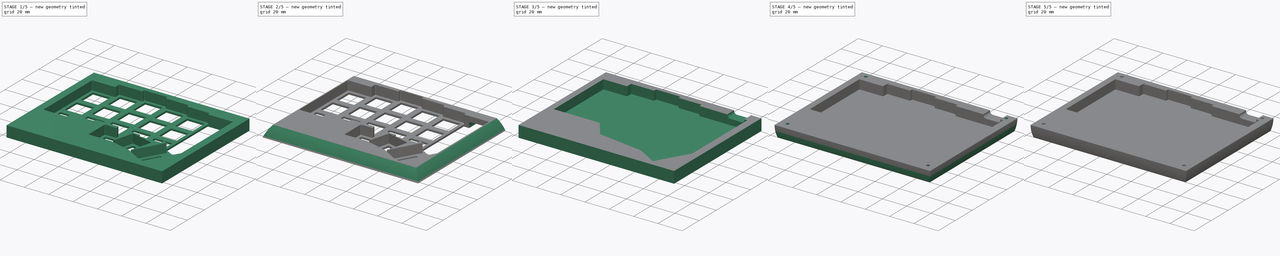
[diagram: build sequence overview — one tinted view per stage of 5, left to right]
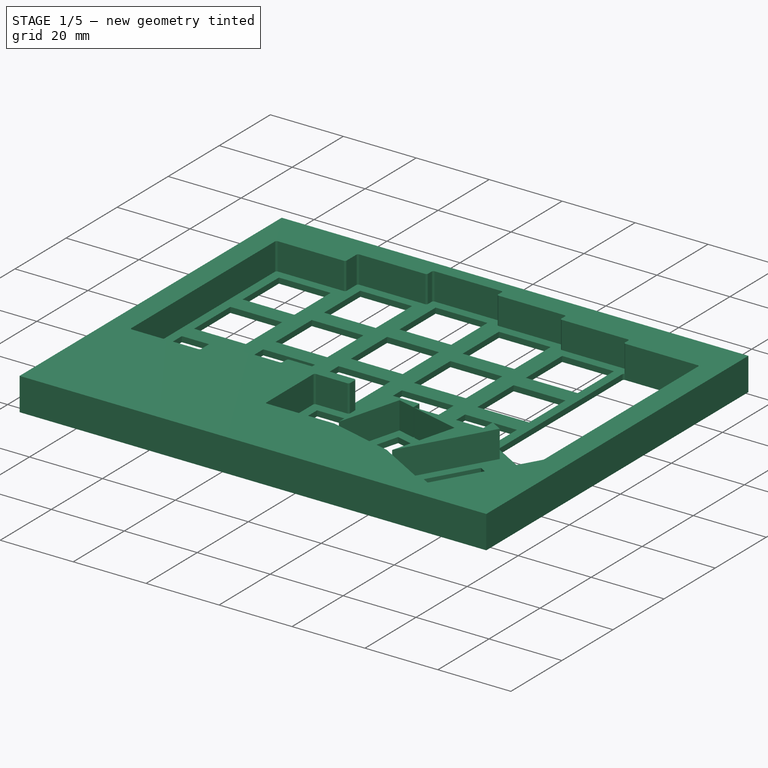
[diagram: stage 1 of 5 — iso view after this stage's code; geometry added in this stage tinted green]
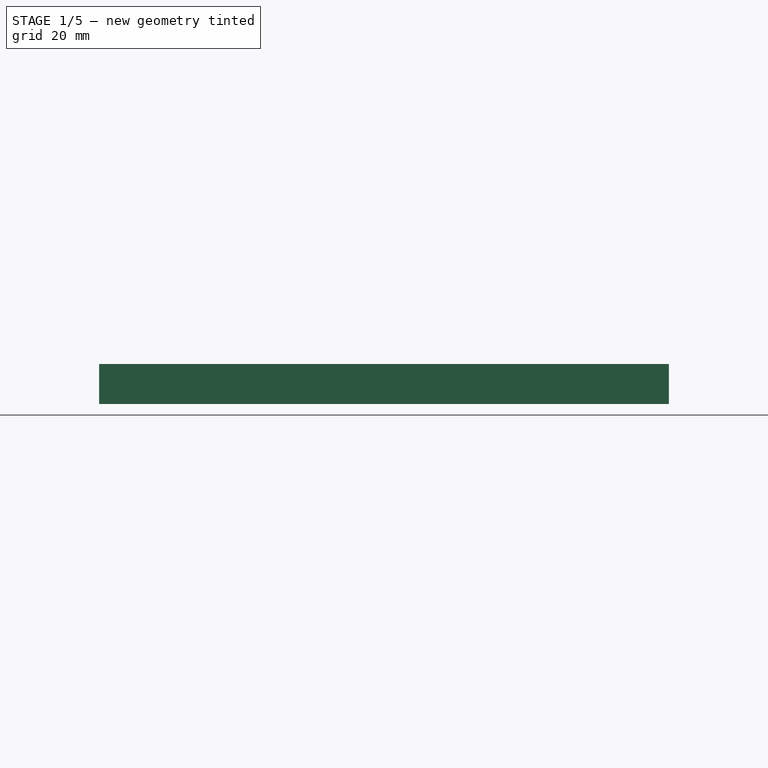
[diagram: stage 1 of 5 — front view after this stage's code; geometry added in this stage tinted green]
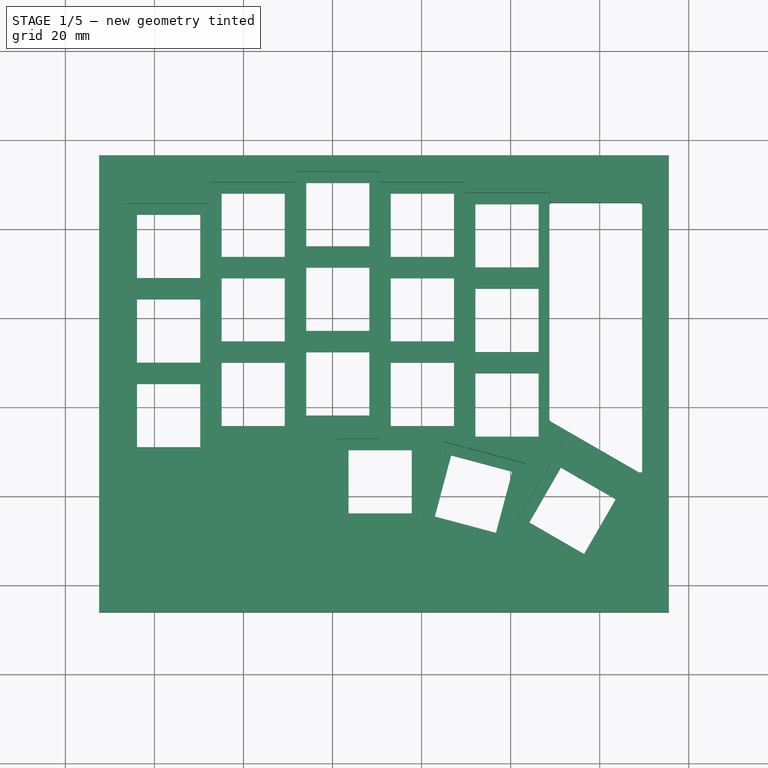
[diagram: stage 1 of 5 — top view after this stage's code; geometry added in this stage tinted green]
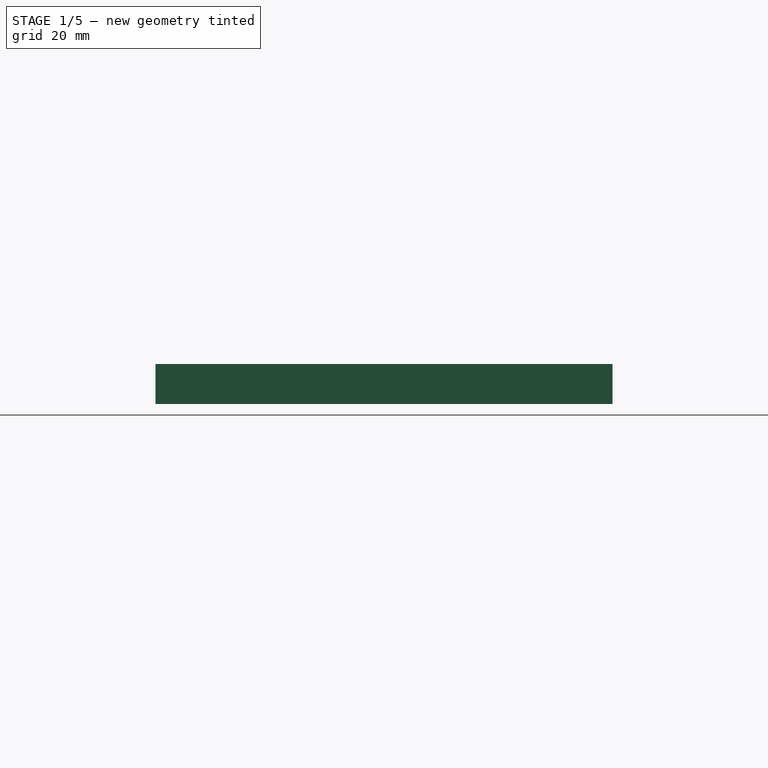
[diagram: stage 1 of 5 — right view after this stage's code; geometry added in this stage tinted green]
FCSTD DOCUMENT  (FreeCAD 0.20R29603 (Git))
Label: pillowhead
License: All rights reserved
LicenseURL: http://en.wikipedia.org/wiki/All_rights_reserved
objects: Sketcher::SketchObject×18, PartDesign::Pocket×15, PartDesign::Pad×2, PartDesign::Body×2, PartDesign::ShapeBinder×2, PartDesign::SubShapeBinder×2, PartDesign::Chamfer×2, Spreadsheet::Sheet×1
note: 62 computed .brp shape members not serialized (recipe doc carries the construction recipe); baked Part::Feature solids carry a one-line shape summary decoded from their .brp

FEATURE [Sketcher::SketchObject] Sketch  label="v2 plate"
  AttachmentOffset = pos=(0,0,0) rot=(0,0,1;3.14159rad)
  FullyConstrained = false
  MapMode = 5
  Placement = pos=(0,0,0) rot=(0,0,1;3.14159rad)
  Support = -> [XY_Plane]
  sketch-geometry (124):
    g0: BSplineCurve PolesCount=4 KnotsCount=2 Degree=3 IsPeriodic=0
    g1: BSplineCurve PolesCount=2 KnotsCount=2 Degree=1 IsPeriodic=0
    g2: BSplineCurve PolesCount=4 KnotsCount=2 Degree=3 IsPeriodic=0
    g3: BSplineCurve PolesCount=2 KnotsCount=2 Degree=1 IsPeriodic=0
    g4: BSplineCurve PolesCount=4 KnotsCount=2 Degree=3 IsPeriodic=0
    g5: BSplineCurve PolesCount=2 KnotsCount=2 Degree=1 IsPeriodic=0
    g6: BSplineCurve PolesCount=4 KnotsCount=2 Degree=3 IsPeriodic=0
    g7: BSplineCurve PolesCount=2 KnotsCount=2 Degree=1 IsPeriodic=0
    g8: BSplineCurve PolesCount=4 KnotsCount=2 Degree=3 IsPeriodic=0
    g9: BSplineCurve PolesCount=2 KnotsCount=2 Degree=1 IsPeriodic=0
    g10: BSplineCurve PolesCount=4 KnotsCount=2 Degree=3 IsPeriodic=0
    g11: BSplineCurve PolesCount=2 KnotsCount=2 Degree=1 IsPeriodic=0
    g12: BSplineCurve PolesCount=4 KnotsCount=2 Degree=3 IsPeriodic=0
    g13: BSplineCurve PolesCount=2 KnotsCount=2 Degree=1 IsPeriodic=0
    g14: BSplineCurve PolesCount=4 KnotsCount=2 Degree=3 IsPeriodic=0
    g15: BSplineCurve PolesCount=2 KnotsCount=2 Degree=1 IsPeriodic=0
    g16: BSplineCurve PolesCount=4 KnotsCount=2 Degree=3 IsPeriodic=0
    g17: BSplineCurve PolesCount=2 KnotsCount=2 Degree=1 IsPeriodic=0
    g18: BSplineCurve PolesCount=4 KnotsCount=2 Degree=3 IsPeriodic=0
    g19: BSplineCurve PolesCount=2 KnotsCount=2 Degree=1 IsPeriodic=0
    g20: BSplineCurve PolesCount=4 KnotsCount=2 Degree=3 IsPeriodic=0
    g21: BSplineCurve PolesCount=2 KnotsCount=2 Degree=1 IsPeriodic=0
    g22: BSplineCurve PolesCount=4 KnotsCount=2 Degree=3 IsPeriodic=0
    g23: BSplineCurve PolesCount=2 KnotsCount=2 Degree=1 IsPeriodic=0
    g24: BSplineCurve PolesCount=4 KnotsCount=2 Degree=3 IsPeriodic=0
    g25: BSplineCurve PolesCount=2 KnotsCount=2 Degree=1 IsPeriodic=0
    g26: BSplineCurve PolesCount=4 KnotsCount=2 Degree=3 IsPeriodic=0
    g27: BSplineCurve PolesCount=4 KnotsCount=2 Degree=3 IsPeriodic=0
    g28: BSplineCurve PolesCount=2 KnotsCount=2 Degree=1 IsPeriodic=0
    g29: BSplineCurve PolesCount=4 KnotsCount=2 Degree=3 IsPeriodic=0
    g30: BSplineCurve PolesCount=2 KnotsCount=2 Degree=1 IsPeriodic=0
    g31: BSplineCurve PolesCount=4 KnotsCount=2 Degree=3 IsPeriodic=0
    g32: BSplineCurve PolesCount=4 KnotsCount=2 Degree=3 IsPeriodic=0
    g33: BSplineCurve PolesCount=4 KnotsCount=2 Degree=3 IsPeriodic=0
    g34: BSplineCurve PolesCount=2 KnotsCount=2 Degree=1 IsPeriodic=0
    g35: BSplineCurve PolesCount=2 KnotsCount=2 Degree=1 IsPeriodic=0
    g36: BSplineCurve PolesCount=2 KnotsCount=2 Degree=1 IsPeriodic=0
    g37: BSplineCurve PolesCount=2 KnotsCount=2 Degree=1 IsPeriodic=0
    g38: BSplineCurve PolesCount=2 KnotsCount=2 Degree=1 IsPeriodic=0
    g39: BSplineCurve PolesCount=2 KnotsCount=2 Degree=1 IsPeriodic=0
    g40: BSplineCurve PolesCount=2 KnotsCount=2 Degree=1 IsPeriodic=0
    g41: BSplineCurve PolesCount=2 KnotsCount=2 Degree=1 IsPeriodic=0
    g42: BSplineCurve PolesCount=2 KnotsCount=2 Degree=1 IsPeriodic=0
    g43: BSplineCurve PolesCount=2 KnotsCount=2 Degree=1 IsPeriodic=0
    g44: BSplineCurve PolesCount=2 KnotsCount=2 Degree=1 IsPeriodic=0
    g45: BSplineCurve PolesCount=2 KnotsCount=2 Degree=1 IsPeriodic=0
    g46: BSplineCurve PolesCount=2 KnotsCount=2 Degree=1 IsPeriodic=0
    g47: BSplineCurve PolesCount=2 KnotsCount=2 Degree=1 IsPeriodic=0
    g48: BSplineCurve PolesCount=2 KnotsCount=2 Degree=1 IsPeriodic=0
    g49: BSplineCurve PolesCount=2 KnotsCount=2 Degree=1 IsPeriodic=0
    g50: BSplineCurve PolesCount=2 KnotsCount=2 Degree=1 IsPeriodic=0
    g51: BSplineCurve PolesCount=2 KnotsCount=2 Degree=1 IsPeriodic=0
    g52: BSplineCurve PolesCount=2 KnotsCount=2 Degree=1 IsPeriodic=0
    g53: BSplineCurve PolesCount=2 KnotsCount=2 Degree=1 IsPeriodic=0
    g54: BSplineCurve PolesCount=2 KnotsCount=2 Degree=1 IsPeriodic=0
    g55: BSplineCurve PolesCount=2 KnotsCount=2 Degree=1 IsPeriodic=0
    g56: BSplineCurve PolesCount=2 KnotsCount=2 Degree=1 IsPeriodic=0
    g57: BSplineCurve PolesCount=2 KnotsCount=2 Degree=1 IsPeriodic=0
    g58: BSplineCurve PolesCount=2 KnotsCount=2 Degree=1 IsPeriodic=0
    g59: BSplineCurve PolesCount=2 KnotsCount=2 Degree=1 IsPeriodic=0
    g60: BSplineCurve PolesCount=2 KnotsCount=2 Degree=1 IsPeriodic=0
    g61: BSplineCurve PolesCount=2 KnotsCount=2 Degree=1 IsPeriodic=0
    g62: BSplineCurve PolesCount=2 KnotsCount=2 Degree=1 IsPeriodic=0
    g63: BSplineCurve PolesCount=2 KnotsCount=2 Degree=1 IsPeriodic=0
    g64: BSplineCurve PolesCount=2 KnotsCount=2 Degree=1 IsPeriodic=0
    g65: BSplineCurve PolesCount=2 KnotsCount=2 Degree=1 IsPeriodic=0
    g66: BSplineCurve PolesCount=2 KnotsCount=2 Degree=1 IsPeriodic=0
    g67: BSplineCurve PolesCount=2 KnotsCount=2 Degree=1 IsPeriodic=0
    g68: BSplineCurve PolesCount=2 KnotsCount=2 Degree=1 IsPeriodic=0
    g69: BSplineCurve PolesCount=2 KnotsCount=2 Degree=1 IsPeriodic=0
    g70: BSplineCurve PolesCount=2 KnotsCount=2 Degree=1 IsPeriodic=0
    g71: BSplineCurve PolesCount=2 KnotsCount=2 Degree=1 IsPeriodic=0
    g72: BSplineCurve PolesCount=2 KnotsCount=2 Degree=1 IsPeriodic=0
    g73: BSplineCurve PolesCount=2 KnotsCount=2 Degree=1 IsPeriodic=0
    g74: BSplineCurve PolesCount=2 KnotsCount=2 Degree=1 IsPeriodic=0
    g75: BSplineCurve PolesCount=2 KnotsCount=2 Degree=1 IsPeriodic=0
    g76: BSplineCurve PolesCount=2 KnotsCount=2 Degree=1 IsPeriodic=0
    g77: BSplineCurve PolesCount=2 KnotsCount=2 Degree=1 IsPeriodic=0
    g78: BSplineCurve PolesCount=2 KnotsCount=2 Degree=1 IsPeriodic=0
    g79: BSplineCurve PolesCount=2 KnotsCount=2 Degree=1 IsPeriodic=0
    g80: BSplineCurve PolesCount=2 KnotsCount=2 Degree=1 IsPeriodic=0
    g81: BSplineCurve PolesCount=2 KnotsCount=2 Degree=1 IsPeriodic=0
    g82: BSplineCurve PolesCount=2 KnotsCount=2 Degree=1 IsPeriodic=0
    g83: BSplineCurve PolesCount=2 KnotsCount=2 Degree=1 IsPeriodic=0
    g84: BSplineCurve PolesCount=2 KnotsCount=2 Degree=1 IsPeriodic=0
    g85: BSplineCurve PolesCount=2 KnotsCount=2 Degree=1 IsPeriodic=0
    g86: BSplineCurve PolesCount=2 KnotsCount=2 Degree=1 IsPeriodic=0
    g87: BSplineCurve PolesCount=2 KnotsCount=2 Degree=1 IsPeriodic=0
    g88: BSplineCurve PolesCount=2 KnotsCount=2 Degree=1 IsPeriodic=0
    g89: BSplineCurve PolesCount=2 KnotsCount=2 Degree=1 IsPeriodic=0
    g90: BSplineCurve PolesCount=2 KnotsCount=2 Degree=1 IsPeriodic=0
    g91: BSplineCurve PolesCount=2 KnotsCount=2 Degree=1 IsPeriodic=0
    g92: BSplineCurve PolesCount=2 KnotsCount=2 Degree=1 IsPeriodic=0
    g93: BSplineCurve PolesCount=2 KnotsCount=2 Degree=1 IsPeriodic=0
    g94: BSplineCurve PolesCount=2 KnotsCount=2 Degree=1 IsPeriodic=0
    g95: BSplineCurve PolesCount=2 KnotsCount=2 Degree=1 IsPeriodic=0
    g96: BSplineCurve PolesCount=2 KnotsCount=2 Degree=1 IsPeriodic=0
    g97: BSplineCurve PolesCount=2 KnotsCount=2 Degree=1 IsPeriodic=0
    g98: BSplineCurve PolesCount=2 KnotsCount=2 Degree=1 IsPeriodic=0
    g99: BSplineCurve PolesCount=2 KnotsCount=2 Degree=1 IsPeriodic=0
    g100: BSplineCurve PolesCount=2 KnotsCount=2 Degree=1 IsPeriodic=0
    g101: BSplineCurve PolesCount=2 KnotsCount=2 Degree=1 IsPeriodic=0
    g102: BSplineCurve PolesCount=2 KnotsCount=2 Degree=1 IsPeriodic=0
    g103: BSplineCurve PolesCount=2 KnotsCount=2 Degree=1 IsPeriodic=0
    g104: BSplineCurve PolesCount=2 KnotsCount=2 Degree=1 IsPeriodic=0
    g105: BSplineCurve PolesCount=2 KnotsCount=2 Degree=1 IsPeriodic=0
    g106: BSplineCurve PolesCount=2 KnotsCount=2 Degree=1 IsPeriodic=0
    g107: BSplineCurve PolesCount=2 KnotsCount=2 Degree=1 IsPeriodic=0
    g108: BSplineCurve PolesCount=4 KnotsCount=2 Degree=3 IsPeriodic=0
    g109: BSplineCurve PolesCount=2 KnotsCount=2 Degree=1 IsPeriodic=0
    g110: BSplineCurve PolesCount=4 KnotsCount=2 Degree=3 IsPeriodic=0
    g111: BSplineCurve PolesCount=4 KnotsCount=2 Degree=3 IsPeriodic=0
    g112: BSplineCurve PolesCount=2 KnotsCount=2 Degree=1 IsPeriodic=0
    g113: BSplineCurve PolesCount=4 KnotsCount=2 Degree=3 IsPeriodic=0
    g114: BSplineCurve PolesCount=2 KnotsCount=2 Degree=1 IsPeriodic=0
    g115: BSplineCurve PolesCount=4 KnotsCount=2 Degree=3 IsPeriodic=0
    g116: BSplineCurve PolesCount=4 KnotsCount=2 Degree=3 IsPeriodic=0
    g117: BSplineCurve PolesCount=4 KnotsCount=2 Degree=3 IsPeriodic=0
    g118: BSplineCurve PolesCount=4 KnotsCount=2 Degree=3 IsPeriodic=0
    g119: BSplineCurve PolesCount=4 KnotsCount=2 Degree=3 IsPeriodic=0
    g120: BSplineCurve PolesCount=4 KnotsCount=2 Degree=3 IsPeriodic=0
    g121: BSplineCurve PolesCount=4 KnotsCount=2 Degree=3 IsPeriodic=0
    g122: BSplineCurve PolesCount=4 KnotsCount=2 Degree=3 IsPeriodic=0
    g123: BSplineCurve PolesCount=4 KnotsCount=2 Degree=3 IsPeriodic=0
  constraints (124):
    c: Coincident(g0,g1)
    c: Coincident(g1,g2)
    c: Coincident(g2,g3)
    c: Coincident(g3,g4)
    c: Coincident(g4,g5)
    c: Coincident(g5,g6)
    c: Coincident(g6,g7)
    c: Coincident(g7,g8)
    c: Coincident(g8,g9)
    c: Coincident(g9,g10)
    c: Coincident(g10,g11)
    c: Coincident(g11,g12)
    c: Coincident(g12,g13)
    c: Coincident(g13,g14)
    c: Coincident(g14,g15)
    c: Coincident(g15,g16)
    c: Coincident(g16,g17)
    c: Coincident(g17,g18)
    c: Coincident(g18,g19)
    c: Coincident(g19,g20)
    c: Coincident(g20,g21)
    c: Coincident(g21,g22)
    c: Coincident(g22,g23)
    c: Coincident(g23,g24)
    c: Coincident(g24,g25)
    c: Coincident(g25,g26)
    c: Coincident(g26,g27)
    c: Coincident(g27,g28)
    c: Coincident(g28,g29)
    c: Coincident(g29,g30)
    c: Coincident(g30,g31)
    c: Coincident(g31,g32)
    c: Coincident(g32,g33)
    c: Coincident(g33,g34)
    c: Coincident(g34,g0)
    c: Coincident(g35,g36)
    c: Coincident(g36,g37)
    c: Coincident(g37,g38)
    c: Coincident(g38,g35)
    c: Coincident(g39,g40)
    c: Coincident(g40,g41)
    c: Coincident(g41,g42)
    c: Coincident(g42,g39)
    c: Coincident(g43,g44)
    c: Coincident(g44,g45)
    c: Coincident(g45,g46)
    c: Coincident(g46,g43)
    c: Coincident(g47,g48)
    c: Coincident(g48,g49)
    c: Coincident(g49,g50)
    c: Coincident(g50,g47)
    c: Coincident(g51,g52)
    c: Coincident(g52,g53)
    c: Coincident(g53,g54)
    c: Coincident(g54,g51)
    c: Coincident(g55,g56)
    c: Coincident(g56,g57)
    c: Coincident(g57,g58)
    c: Coincident(g58,g55)
    c: Coincident(g59,g60)
    c: Coincident(g60,g61)
    c: Coincident(g61,g62)
    c: Coincident(g62,g59)
    c: Coincident(g63,g64)
    c: Coincident(g64,g65)
    c: Coincident(g65,g66)
    c: Coincident(g66,g63)
    c: Coincident(g67,g68)
    c: Coincident(g68,g69)
    c: Coincident(g69,g70)
    c: Coincident(g70,g67)
    c: Coincident(g71,g72)
    c: Coincident(g72,g73)
    c: Coincident(g73,g74)
    c: Coincident(g74,g71)
    c: Coincident(g75,g76)
    c: Coincident(g76,g77)
    c: Coincident(g77,g78)
    c: Coincident(g78,g75)
    c: Coincident(g79,g80)
    c: Coincident(g80,g81)
    c: Coincident(g81,g82)
    c: Coincident(g82,g79)
    c: Coincident(g83,g84)
    c: Coincident(g84,g85)
    c: Coincident(g85,g86)
    c: Coincident(g86,g83)
    c: Coincident(g87,g88)
    c: Coincident(g88,g89)
    c: Coincident(g89,g90)
    c: Coincident(g90,g87)
    c: Coincident(g91,g92)
    c: Coincident(g92,g93)
    c: Coincident(g93,g94)
    c: Coincident(g94,g91)
    c: Coincident(g95,g96)
    c: Coincident(g96,g97)
    c: Coincident(g97,g98)
    c: Coincident(g98,g95)
    c: Coincident(g99,g100)
    c: Coincident(g100,g101)
    c: Coincident(g101,g102)
    c: Coincident(g102,g99)
    c: Coincident(g103,g104)
    c: Coincident(g104,g105)
    c: Coincident(g105,g106)
    c: Coincident(g106,g103)
    c: Coincident(g107,g108)
    c: Coincident(g108,g109)
    c: Coincident(g109,g110)
    c: Coincident(g110,g111)
    c: Coincident(g111,g112)
    c: Coincident(g112,g113)
    c: Coincident(g113,g114)
    c: Coincident(g114,g115)
    c: Coincident(g115,g107)
    c: Coincident(g116,g117)
    c: Coincident(g117,g118)
    c: Coincident(g118,g119)
    c: Coincident(g119,g116)
    c: Coincident(g120,g121)
    c: Coincident(g121,g122)
    c: Coincident(g122,g123)
    c: Coincident(g123,g120)
FEATURE [Spreadsheet::Sheet] Spreadsheet
  cells = A1=switch_tolerance; B1(switch_tolerance)=0.1; A2=plate_clearance; B2(plate_clearance)=0.5; A3=edge_padding; B3(edge_padding)=6; A4=edge_curve; B4(edge_curve)==3 * edge_padding; A5=height; B5(height)=9; A6=switch_clearance; B6(switch_clearance)=2.5; A7=plate_corner_r; B7(plate_corner_r)=0.5; A8=insert_diameter; B8(insert_diameter)=3.2; A9=insert_offset; B9(insert_offset)=2; A10=insert_depth; B10(insert_depth)=5; A11=insert_offset_x; B11(insert_offset_x)=1; A12=insert_offset_y; B12(insert_offset_y)=1.5; A13=bottom_height; B13(bottom_height)=9.5; A14=pcb_clearance; B14(pcb_clearance)=1; A15=pcb_pad; B15(pcb_pad)=7.5; A16=screw_chamfer; B16(screw_chamfer)==screw_cutout / 2 - screw_hole / 2; A17=screw_hole; B17(screw_hole)=2.6; A18=screw_cutout; B18(screw_cutout)=4.4
FEATURE [Sketcher::SketchObject] Sketch002  label="switches_sketch"
  ExternalGeometry = -> [Sketch]
  FullyConstrained = true
  MapMode = 5
  Support = -> [XY_Plane]
  expr: Constraints[128] = Spreadsheet.switch_tolerance
  expr: Constraints[129] = Spreadsheet.switch_tolerance
  expr: Constraints[130] = Spreadsheet.switch_tolerance
  expr: Constraints[131] = Spreadsheet.switch_tolerance
  expr: Constraints[132] = Spreadsheet.switch_tolerance
  expr: Constraints[133] = Spreadsheet.switch_tolerance
  expr: Constraints[134] = Spreadsheet.switch_tolerance
  expr: Constraints[135] = Spreadsheet.switch_tolerance
  expr: Constraints[136] = Spreadsheet.switch_tolerance
  expr: Constraints[137] = Spreadsheet.switch_tolerance
  expr: Constraints[138] = Spreadsheet.switch_tolerance
  expr: Constraints[139] = Spreadsheet.switch_tolerance
  expr: Constraints[140] = Spreadsheet.switch_tolerance
  expr: Constraints[141] = Spreadsheet.switch_tolerance
  expr: Constraints[142] = Spreadsheet.switch_tolerance
  expr: Constraints[143] = Spreadsheet.switch_tolerance
  expr: Constraints[144] = Spreadsheet.switch_tolerance
  expr: Constraints[145] = Spreadsheet.switch_tolerance
  expr: Constraints[146] = Spreadsheet.switch_tolerance
  expr: Constraints[147] = Spreadsheet.switch_tolerance
  expr: Constraints[148] = Spreadsheet.switch_tolerance
  expr: Constraints[149] = Spreadsheet.switch_tolerance
  expr: Constraints[150] = Spreadsheet.switch_tolerance
  expr: Constraints[151] = Spreadsheet.switch_tolerance
  expr: Constraints[152] = Spreadsheet.switch_tolerance
  expr: Constraints[153] = Spreadsheet.switch_tolerance
  expr: Constraints[154] = Spreadsheet.switch_tolerance
  expr: Constraints[155] = Spreadsheet.switch_tolerance
  expr: Constraints[156] = Spreadsheet.switch_tolerance
  expr: Constraints[157] = Spreadsheet.switch_tolerance
  expr: Constraints[158] = Spreadsheet.switch_tolerance
  expr: Constraints[159] = Spreadsheet.switch_tolerance
  expr: Constraints[160] = 14 + Spreadsheet.switch_tolerance * 2
  expr: Constraints[161] = 14 + Spreadsheet.switch_tolerance * 2
  expr: Constraints[162] = 14 + Spreadsheet.switch_tolerance * 2
  expr: Constraints[163] = 14 + Spreadsheet.switch_tolerance * 2
  expr: Constraints[164] = 14 + Spreadsheet.switch_tolerance * 2
  expr: Constraints[165] = 14 + Spreadsheet.switch_tolerance * 2
  expr: Constraints[166] = 14 + Spreadsheet.switch_tolerance * 2
  expr: Constraints[167] = 14 + Spreadsheet.switch_tolerance * 2
  expr: Constraints[168] = 14 + Spreadsheet.switch_tolerance * 2
  expr: Constraints[169] = 14 + Spreadsheet.switch_tolerance * 2
  expr: Constraints[170] = 14 + Spreadsheet.switch_tolerance * 2
  expr: Constraints[171] = 14 + Spreadsheet.switch_tolerance * 2
  expr: Constraints[172] = 14 + Spreadsheet.switch_tolerance * 2
  expr: Constraints[173] = 14 + Spreadsheet.switch_tolerance * 2
  expr: Constraints[174] = 14 + Spreadsheet.switch_tolerance * 2
  expr: Constraints[175] = 14 + Spreadsheet.switch_tolerance * 2
  expr: Constraints[176] = 14 + Spreadsheet.switch_tolerance * 2
  expr: Constraints[177] = 14 + Spreadsheet.switch_tolerance * 2
  expr: Constraints[178] = 14 + Spreadsheet.switch_tolerance * 2
  expr: Constraints[179] = 14 + Spreadsheet.switch_tolerance * 2
  expr: Constraints[180] = 14 + Spreadsheet.switch_tolerance * 2
  expr: Constraints[181] = 14 + Spreadsheet.switch_tolerance * 2
  expr: Constraints[182] = 14 + Spreadsheet.switch_tolerance * 2
  expr: Constraints[183] = 14 + Spreadsheet.switch_tolerance * 2
  expr: Constraints[184] = 14 + Spreadsheet.switch_tolerance * 2
  expr: Constraints[185] = 14 + Spreadsheet.switch_tolerance * 2
  expr: Constraints[186] = 14 + Spreadsheet.switch_tolerance * 2
  expr: Constraints[187] = 14 + Spreadsheet.switch_tolerance * 2
  expr: Constraints[188] = 14 + Spreadsheet.switch_tolerance * 2
  expr: Constraints[189] = 14 + Spreadsheet.switch_tolerance * 2
  expr: Constraints[190] = 14 + Spreadsheet.switch_tolerance * 2
  expr: Constraints[191] = 14 + Spreadsheet.switch_tolerance * 2
  expr: Constraints[200] = 14 + Spreadsheet.switch_tolerance * 2
  expr: Constraints[201] = 14 + Spreadsheet.switch_tolerance * 2
  expr: Constraints[202] = 14 + Spreadsheet.switch_tolerance * 2
  expr: Constraints[203] = 14 + Spreadsheet.switch_tolerance * 2
  expr: Constraints[204] = Spreadsheet.switch_tolerance
  expr: Constraints[205] = Spreadsheet.switch_tolerance
  expr: Constraints[206] = Spreadsheet.switch_tolerance
  expr: Constraints[207] = Spreadsheet.switch_tolerance
  expr: Constraints[208] = 14 + Spreadsheet.switch_tolerance * 2
  expr: Constraints[209] = 14 + Spreadsheet.switch_tolerance * 2
  expr: Constraints[210] = 14 + Spreadsheet.switch_tolerance * 2
  expr: Constraints[211] = 14 + Spreadsheet.switch_tolerance * 2
  expr: Constraints[212] = Spreadsheet.switch_tolerance
  expr: Constraints[213] = Spreadsheet.switch_tolerance
  expr: Constraints[214] = Spreadsheet.switch_tolerance
  expr: Constraints[215] = Spreadsheet.switch_tolerance
  sketch-geometry (72):
    g0: LineSegment StartX=176.084 StartY=-16.7396 StartZ=0 EndX=190.284 EndY=-16.7396 EndZ=0
    g1: LineSegment StartX=190.284 StartY=-16.7396 StartZ=0 EndX=190.284 EndY=-30.9396 EndZ=0
    g2: LineSegment StartX=190.284 StartY=-30.9396 StartZ=0 EndX=176.084 EndY=-30.9396 EndZ=0
    g3: LineSegment StartX=176.084 StartY=-30.9396 StartZ=0 EndX=176.084 EndY=-16.7396 EndZ=0
    g4: LineSegment StartX=195.084 StartY=-11.9895 StartZ=0 EndX=209.284 EndY=-11.9895 EndZ=0
    g5: LineSegment StartX=209.284 StartY=-11.9895 StartZ=0 EndX=209.284 EndY=-26.1895 EndZ=0
    g6: LineSegment StartX=209.284 StartY=-26.1895 StartZ=0 EndX=195.084 EndY=-26.1895 EndZ=0
    g7: LineSegment StartX=195.084 StartY=-26.1895 StartZ=0 EndX=195.084 EndY=-11.9895 EndZ=0
    g8: LineSegment StartX=214.086 StartY=-9.61379 StartZ=0 EndX=228.286 EndY=-9.61379 EndZ=0
    g9: LineSegment StartX=228.286 StartY=-9.61379 StartZ=0 EndX=228.286 EndY=-23.8138 EndZ=0
    g10: LineSegment StartX=228.286 StartY=-23.8138 StartZ=0 EndX=214.086 EndY=-23.8138 EndZ=0
    g11: LineSegment StartX=214.086 StartY=-23.8138 StartZ=0 EndX=214.086 EndY=-9.61379 EndZ=0
    g12: LineSegment StartX=233.087 StartY=-11.9895 StartZ=0 EndX=247.287 EndY=-11.9895 EndZ=0
    g13: LineSegment StartX=247.287 StartY=-11.9895 StartZ=0 EndX=247.287 EndY=-26.1895 EndZ=0
    g14: LineSegment StartX=247.287 StartY=-26.1895 StartZ=0 EndX=233.087 EndY=-26.1895 EndZ=0
    g15: LineSegment StartX=233.087 StartY=-26.1895 StartZ=0 EndX=233.087 EndY=-11.9895 EndZ=0
    g16: LineSegment StartX=252.088 StartY=-14.3639 StartZ=0 EndX=266.288 EndY=-14.3639 EndZ=0
    g17: LineSegment StartX=266.288 StartY=-14.3639 StartZ=0 EndX=266.288 EndY=-28.5639 EndZ=0
    g18: LineSegment StartX=266.288 StartY=-28.5639 StartZ=0 EndX=252.088 EndY=-28.5639 EndZ=0
    g19: LineSegment StartX=252.088 StartY=-28.5639 StartZ=0 EndX=252.088 EndY=-14.3639 EndZ=0
    g20: LineSegment StartX=176.084 StartY=-35.74 StartZ=0 EndX=190.284 EndY=-35.74 EndZ=0
    g21: LineSegment StartX=190.284 StartY=-35.74 StartZ=0 EndX=190.284 EndY=-49.94 EndZ=0
    g22: LineSegment StartX=190.284 StartY=-49.94 StartZ=0 EndX=176.084 EndY=-49.94 EndZ=0
    g23: LineSegment StartX=176.084 StartY=-49.94 StartZ=0 EndX=176.084 EndY=-35.74 EndZ=0
    g24: LineSegment StartX=195.084 StartY=-30.9899 StartZ=0 EndX=209.284 EndY=-30.9899 EndZ=0
    g25: LineSegment StartX=209.284 StartY=-30.9899 StartZ=0 EndX=209.284 EndY=-45.1899 EndZ=0
    g26: LineSegment StartX=209.284 StartY=-45.1899 StartZ=0 EndX=195.084 EndY=-45.1899 EndZ=0
    g27: LineSegment StartX=195.084 StartY=-45.1899 StartZ=0 EndX=195.084 EndY=-30.9899 EndZ=0
    g28: LineSegment StartX=214.086 StartY=-28.6156 StartZ=0 EndX=228.286 EndY=-28.6156 EndZ=0
    g29: LineSegment StartX=228.286 StartY=-28.6156 StartZ=0 EndX=228.286 EndY=-42.8156 EndZ=0
    g30: LineSegment StartX=228.286 StartY=-42.8156 StartZ=0 EndX=214.086 EndY=-42.8156 EndZ=0
    g31: LineSegment StartX=214.086 StartY=-42.8156 StartZ=0 EndX=214.086 EndY=-28.6156 EndZ=0
    g32: LineSegment StartX=233.087 StartY=-30.9899 StartZ=0 EndX=247.287 EndY=-30.9899 EndZ=0
    g33: LineSegment StartX=247.287 StartY=-30.9899 StartZ=0 EndX=247.287 EndY=-45.1899 EndZ=0
    g34: LineSegment StartX=247.287 StartY=-45.1899 StartZ=0 EndX=233.087 EndY=-45.1899 EndZ=0
    g35: LineSegment StartX=233.087 StartY=-45.1899 StartZ=0 EndX=233.087 EndY=-30.9899 EndZ=0
    g36: LineSegment StartX=252.088 StartY=-33.3657 StartZ=0 EndX=266.288 EndY=-33.3657 EndZ=0
    g37: LineSegment StartX=266.288 StartY=-33.3657 StartZ=0 EndX=266.288 EndY=-47.5657 EndZ=0
    g38: LineSegment StartX=266.288 StartY=-47.5657 StartZ=0 EndX=252.088 EndY=-47.5657 EndZ=0
    g39: LineSegment StartX=252.088 StartY=-47.5657 StartZ=0 EndX=252.088 EndY=-33.3657 EndZ=0
    g40: LineSegment StartX=176.084 StartY=-54.7418 StartZ=0 EndX=190.284 EndY=-54.7418 EndZ=0
    g41: LineSegment StartX=190.284 StartY=-54.7418 StartZ=0 EndX=190.284 EndY=-68.9418 EndZ=0
    g42: LineSegment StartX=190.284 StartY=-68.9418 StartZ=0 EndX=176.084 EndY=-68.9418 EndZ=0
    g43: LineSegment StartX=176.084 StartY=-68.9418 StartZ=0 EndX=176.084 EndY=-54.7418 EndZ=0
    g44: LineSegment StartX=195.084 StartY=-49.9917 StartZ=0 EndX=209.284 EndY=-49.9917 EndZ=0
    g45: LineSegment StartX=209.284 StartY=-49.9917 StartZ=0 EndX=209.284 EndY=-64.1917 EndZ=0
    g46: LineSegment StartX=209.284 StartY=-64.1917 StartZ=0 EndX=195.084 EndY=-64.1917 EndZ=0
    g47: LineSegment StartX=195.084 StartY=-64.1917 StartZ=0 EndX=195.084 EndY=-49.9917 EndZ=0
    g48: LineSegment StartX=214.086 StartY=-47.616 StartZ=0 EndX=228.286 EndY=-47.616 EndZ=0
    g49: LineSegment StartX=228.286 StartY=-47.616 StartZ=0 EndX=228.286 EndY=-61.816 EndZ=0
    g50: LineSegment StartX=228.286 StartY=-61.816 StartZ=0 EndX=214.086 EndY=-61.816 EndZ=0
    g51: LineSegment StartX=214.086 StartY=-61.816 StartZ=0 EndX=214.086 EndY=-47.616 EndZ=0
    g52: LineSegment StartX=233.087 StartY=-49.9917 StartZ=0 EndX=247.287 EndY=-49.9917 EndZ=0
    g53: LineSegment StartX=247.287 StartY=-49.9917 StartZ=0 EndX=247.287 EndY=-64.1917 EndZ=0
    g54: LineSegment StartX=247.287 StartY=-64.1917 StartZ=0 EndX=233.087 EndY=-64.1917 EndZ=0
    g55: LineSegment StartX=233.087 StartY=-64.1917 StartZ=0 EndX=233.087 EndY=-49.9917 EndZ=0
    g56: LineSegment StartX=252.088 StartY=-52.3674 StartZ=0 EndX=266.288 EndY=-52.3674 EndZ=0
    g57: LineSegment StartX=266.288 StartY=-52.3674 StartZ=0 EndX=266.288 EndY=-66.5674 EndZ=0
    g58: LineSegment StartX=266.288 StartY=-66.5674 StartZ=0 EndX=252.088 EndY=-66.5674 EndZ=0
    g59: LineSegment StartX=252.088 StartY=-66.5674 StartZ=0 EndX=252.088 EndY=-52.3674 EndZ=0
    g60: LineSegment StartX=223.586 StartY=-69.6177 StartZ=0 EndX=237.786 EndY=-69.6177 EndZ=0
    g61: LineSegment StartX=237.786 StartY=-69.6177 StartZ=0 EndX=237.786 EndY=-83.8177 EndZ=0
    g62: LineSegment StartX=237.786 StartY=-83.8177 StartZ=0 EndX=223.586 EndY=-83.8177 EndZ=0
    g63: LineSegment StartX=223.586 StartY=-83.8177 StartZ=0 EndX=223.586 EndY=-69.6177 EndZ=0
    g64: LineSegment StartX=246.645 StartY=-70.7956 StartZ=0 EndX=242.983 EndY=-84.5153 EndZ=0
    g65: LineSegment StartX=242.983 StartY=-84.5153 StartZ=0 EndX=256.703 EndY=-88.1759 EndZ=0
    g66: LineSegment StartX=256.703 StartY=-88.1759 StartZ=0 EndX=260.365 EndY=-74.4562 EndZ=0
    g67: LineSegment StartX=260.365 StartY=-74.4562 StartZ=0 EndX=246.645 EndY=-70.7956 EndZ=0
    g68: LineSegment StartX=271.292 StartY=-73.543 StartZ=0 EndX=264.2 EndY=-85.8452 EndZ=0
    g69: LineSegment StartX=264.2 StartY=-85.8452 StartZ=0 EndX=276.503 EndY=-92.9361 EndZ=0
    g70: LineSegment StartX=276.503 StartY=-92.9361 StartZ=0 EndX=283.595 EndY=-80.6339 EndZ=0
    g71: LineSegment StartX=283.595 StartY=-80.6339 StartZ=0 EndX=271.292 EndY=-73.543 EndZ=0
  constraints (216):
    c: Coincident(g0,g1)
    c: Coincident(g1,g2)
    c: Coincident(g2,g3)
    c: Coincident(g3,g0)
    c: Horizontal(g0)
    c: Horizontal(g2)
    c: Vertical(g1)
    c: Vertical(g3)
    c: Coincident(g4,g5)
    c: Coincident(g5,g6)
    c: Coincident(g6,g7)
    c: Coincident(g7,g4)
    c: Horizontal(g4)
    c: Horizontal(g6)
    c: Vertical(g5)
    c: Vertical(g7)
    c: Coincident(g8,g9)
    c: Coincident(g9,g10)
    c: Coincident(g10,g11)
    c: Coincident(g11,g8)
    c: Horizontal(g8)
    c: Horizontal(g10)
    c: Vertical(g9)
    c: Vertical(g11)
    c: Coincident(g12,g13)
    c: Coincident(g13,g14)
    c: Coincident(g14,g15)
    c: Coincident(g15,g12)
    c: Horizontal(g12)
    c: Horizontal(g14)
    c: Vertical(g13)
    c: Vertical(g15)
    c: Coincident(g16,g17)
    c: Coincident(g17,g18)
    c: Coincident(g18,g19)
    c: Coincident(g19,g16)
    c: Horizontal(g16)
    c: Horizontal(g18)
    c: Vertical(g17)
    c: Vertical(g19)
    c: Coincident(g20,g21)
    c: Coincident(g21,g22)
    c: Coincident(g22,g23)
    c: Coincident(g23,g20)
    c: Horizontal(g20)
    c: Horizontal(g22)
    c: Vertical(g21)
    c: Vertical(g23)
    c: Coincident(g24,g25)
    c: Coincident(g25,g26)
    c: Coincident(g26,g27)
    c: Coincident(g27,g24)
    c: Horizontal(g24)
    c: Horizontal(g26)
    c: Vertical(g25)
    c: Vertical(g27)
    c: Coincident(g28,g29)
    c: Coincident(g29,g30)
    c: Coincident(g30,g31)
    c: Coincident(g31,g28)
    c: Horizontal(g28)
    c: Horizontal(g30)
    c: Vertical(g29)
    c: Vertical(g31)
    c: Coincident(g32,g33)
    c: Coincident(g33,g34)
    c: Coincident(g34,g35)
    c: Coincident(g35,g32)
    c: Horizontal(g32)
    c: Horizontal(g34)
    c: Vertical(g33)
    c: Vertical(g35)
    c: Coincident(g36,g37)
    c: Coincident(g37,g38)
    c: Coincident(g38,g39)
    c: Coincident(g39,g36)
    c: Horizontal(g36)
    c: Horizontal(g38)
    c: Vertical(g37)
    c: Vertical(g39)
    c: Coincident(g40,g41)
    c: Coincident(g41,g42)
    c: Coincident(g42,g43)
    c: Coincident(g43,g40)
    c: Horizontal(g40)
    c: Horizontal(g42)
    c: Vertical(g41)
    c: Vertical(g43)
    c: Coincident(g44,g45)
    c: Coincident(g45,g46)
    c: Coincident(g46,g47)
    c: Coincident(g47,g44)
    c: Horizontal(g44)
    c: Horizontal(g46)
    c: Vertical(g45)
    c: Vertical(g47)
    c: Coincident(g48,g49)
    c: Coincident(g49,g50)
    c: Coincident(g50,g51)
    c: Coincident(g51,g48)
    c: Horizontal(g48)
    c: Horizontal(g50)
    c: Vertical(g49)
    c: Vertical(g51)
    c: Coincident(g52,g53)
    c: Coincident(g53,g54)
    c: Coincident(g54,g55)
    c: Coincident(g55,g52)
    c: Horizontal(g52)
    c: Horizontal(g54)
    c: Vertical(g53)
    c: Vertical(g55)
    c: Coincident(g56,g57)
    c: Coincident(g57,g58)
    c: Coincident(g58,g59)
    c: Coincident(g59,g56)
    c: Horizontal(g56)
    c: Horizontal(g58)
    c: Vertical(g57)
    c: Vertical(g59)
    c: Coincident(g60,g61)
    c: Coincident(g61,g62)
    c: Coincident(g62,g63)
    c: Coincident(g63,g60)
    c: Horizontal(g60)
    c: Horizontal(g62)
    c: Vertical(g61)
    c: Vertical(g63)
    c: DistanceY(g-3,g0) = 0.1
    c: DistanceX(g0,g-3) = 0.1
    c: DistanceY(g-5,g4) = 0.1
    c: DistanceX(g4,g-5) = 0.1
    c: DistanceY(g-7,g8) = 0.1
    c: DistanceX(g8,g-7) = 0.1
    c: DistanceY(g-9,g12) = 0.1
    c: DistanceX(g12,g-9) = 0.1
    c: DistanceY(g-11,g16) = 0.1
    c: DistanceX(g16,g-11) = 0.1
    c: DistanceY(g-13,g36) = 0.1
    c: DistanceX(g36,g-13) = 0.1
    c: DistanceY(g-15,g32) = 0.1
    c: DistanceX(g32,g-15) = 0.1
    c: DistanceY(g-16,g28) = 0.1
    c: DistanceX(g28,g-16) = 0.1
    c: DistanceY(g-17,g24) = 0.1
    c: DistanceX(g24,g-17) = 0.1
    c: DistanceY(g-18,g20) = 0.1
    c: DistanceX(g20,g-18) = 0.1
    c: DistanceY(g-19,g40) = 0.1
    c: DistanceX(g40,g-19) = 0.1
    c: DistanceY(g-20,g44) = 0.1
    c: DistanceX(g44,g-20) = 0.1
    c: DistanceY(g-21,g48) = 0.1
    c: DistanceX(g48,g-21) = 0.1
    c: DistanceY(g-22,g52) = 0.1
    c: DistanceX(g52,g-22) = 0.1
    c: DistanceY(g-23,g56) = 0.1
    c: DistanceX(g56,g-23) = 0.1
    c: DistanceY(g-24,g60) = 0.1
    c: DistanceX(g60,g-24) = 0.1
    c: DistanceX(g0,g0) = 14.2
    c: DistanceY(g3,g3) = 14.2
    c: DistanceY(g7,g7) = 14.2
    c: DistanceX(g4,g4) = 14.2
    c: DistanceX(g8,g8) = 14.2
    c: DistanceY(g11,g11) = 14.2
    c: DistanceX(g12,g12) = 14.2
    c: DistanceY(g15,g15) = 14.2
    c: DistanceY(g19,g19) = 14.2
    c: DistanceX(g16,g16) = 14.2
    c: DistanceX(g36,g36) = 14.2
    c: DistanceY(g39,g39) = 14.2
    c: DistanceX(g32,g32) = 14.2
    c: DistanceY(g35,g35) = 14.2
    c: DistanceX(g28,g28) = 14.2
    c: DistanceY(g31,g31) = 14.2
    c: DistanceX(g24,g24) = 14.2
    c: DistanceY(g27,g27) = 14.2
    c: DistanceX(g20,g20) = 14.2
    c: DistanceY(g23,g23) = 14.2
    c: DistanceX(g40,g40) = 14.2
    c: DistanceY(g43,g43) = 14.2
    c: DistanceX(g44,g44) = 14.2
    c: DistanceY(g47,g47) = 14.2
    c: DistanceY(g51,g51) = 14.2
    c: DistanceX(g48,g48) = 14.2
    c: DistanceX(g52,g52) = 14.2
    c: DistanceY(g55,g55) = 14.2
    c: DistanceX(g56,g56) = 14.2
    c: DistanceY(g59,g59) = 14.2
    c: DistanceX(g60,g60) = 14.2
    c: DistanceY(g63,g63) = 14.2
    c: Coincident(g65,g64)
    c: Coincident(g66,g65)
    c: Coincident(g67,g66)
    c: Coincident(g67,g64)
    c: Coincident(g69,g68)
    c: Coincident(g70,g69)
    c: Coincident(g71,g70)
    c: Coincident(g71,g68)
    c: Distance(g67) = 14.2
    c: Distance(g64) = 14.2
    c: Distance(g65) = 14.2
    c: Distance(g66) = 14.2
    c: Distance(g-28,g64) = 0.1
    c: Distance(g-28,g67) = 0.1
    c: Distance(g-31,g67) = 0.1
    c: Distance(g-29,g64) = 0.1
    c: Distance(g68) = 14.2
    c: Distance(g71) = 14.2
    c: Distance(g69) = 14.2
    c: Distance(g70) = 14.2
    c: Distance(g-32,g68) = 0.1
    c: Distance(g-33,g68) = 0.1
    c: Distance(g-33,g71) = 0.1
    c: Distance(g-34,g71) = 0.1
FEATURE [Sketcher::SketchObject] Sketch003  label="plate_sketch"
  AttachmentOffset = pos=(0,0,1.5) rot=(0,0,1;0rad)
  ExternalGeometry = -> [Sketch,Sketch002]
  FullyConstrained = true
  MapMode = 5
  Placement = pos=(0,0,1.5) rot=(0,0,1;0rad)
  Support = -> [XY_Plane]
  expr: Constraints[100] = Spreadsheet.plate_corner_r
  expr: Constraints[101] = Spreadsheet.plate_corner_r
  expr: Constraints[102] = Spreadsheet.plate_corner_r
  expr: Constraints[103] = Spreadsheet.plate_corner_r
  expr: Constraints[104] = Spreadsheet.plate_corner_r
  expr: Constraints[105] = Spreadsheet.plate_corner_r
  expr: Constraints[106] = Spreadsheet.plate_corner_r
  expr: Constraints[107] = Spreadsheet.plate_corner_r
  expr: Constraints[108] = Spreadsheet.plate_corner_r
  expr: Constraints[109] = Spreadsheet.plate_corner_r
  expr: Constraints[110] = Spreadsheet.plate_corner_r
  expr: Constraints[111] = Spreadsheet.plate_corner_r
  expr: Constraints[112] = Spreadsheet.plate_corner_r
  expr: Constraints[120] = Spreadsheet.switch_clearance
  expr: Constraints[123] = Spreadsheet.plate_corner_r
  expr: Constraints[124] = Spreadsheet.plate_corner_r
  expr: Constraints[137] = Spreadsheet.plate_clearance
  expr: Constraints[138] = Spreadsheet.plate_clearance
  expr: Constraints[141] = Spreadsheet.switch_clearance
  expr: Constraints[143] = Spreadsheet.plate_corner_r
  expr: Constraints[144] = Spreadsheet.plate_corner_r
  expr: Constraints[14] = Spreadsheet.switch_clearance
  expr: Constraints[153] = Spreadsheet.switch_clearance
  expr: Constraints[154] = Spreadsheet.switch_clearance
  expr: Constraints[155] = Spreadsheet.switch_clearance
  expr: Constraints[164] = Spreadsheet.plate_corner_r
  expr: Constraints[165] = Spreadsheet.plate_corner_r
  expr: Constraints[166] = Spreadsheet.plate_corner_r
  expr: Constraints[16] = Spreadsheet.switch_clearance
  expr: Constraints[171] = Spreadsheet.switch_clearance
  expr: Constraints[172] = Spreadsheet.switch_clearance
  expr: Constraints[179] = Spreadsheet.switch_clearance
  expr: Constraints[17] = Spreadsheet.switch_clearance
  expr: Constraints[180] = Spreadsheet.switch_clearance
  expr: Constraints[181] = Spreadsheet.switch_clearance
  expr: Constraints[182] = Spreadsheet.switch_clearance
  expr: Constraints[188] = Spreadsheet.switch_clearance
  expr: Constraints[189] = Spreadsheet.switch_clearance
  expr: Constraints[190] = Spreadsheet.switch_clearance
  expr: Constraints[199] = Spreadsheet.switch_clearance
  expr: Constraints[19] = Spreadsheet.switch_clearance
  expr: Constraints[200] = Spreadsheet.switch_clearance
  expr: Constraints[201] = Spreadsheet.switch_clearance
  expr: Constraints[202] = Spreadsheet.switch_clearance
  expr: Constraints[203] = Spreadsheet.switch_clearance
  expr: Constraints[204] = Spreadsheet.switch_clearance
  expr: Constraints[205] = Spreadsheet.switch_clearance
  expr: Constraints[207] = -(180 - 150.04)
  expr: Constraints[208] = Spreadsheet.switch_clearance
  expr: Constraints[22] = Spreadsheet.switch_clearance
  expr: Constraints[24] = Spreadsheet.switch_clearance
  expr: Constraints[25] = Spreadsheet.switch_clearance
  expr: Constraints[26] = Spreadsheet.plate_clearance
  expr: Constraints[27] = Spreadsheet.plate_clearance
  expr: Constraints[28] = Spreadsheet.plate_clearance
  expr: Constraints[29] = Spreadsheet.plate_clearance
  expr: Constraints[30] = Spreadsheet.switch_clearance
  expr: Constraints[31] = Spreadsheet.switch_clearance
  expr: Constraints[32] = Spreadsheet.switch_clearance
  expr: Constraints[34] = Spreadsheet.switch_clearance
  expr: Constraints[35] = Spreadsheet.switch_clearance
  expr: Constraints[37] = Spreadsheet.switch_clearance
  expr: Constraints[38] = Spreadsheet.switch_clearance
  expr: Constraints[40] = Spreadsheet.switch_clearance
  expr: Constraints[98] = Spreadsheet.plate_corner_r
  expr: Constraints[99] = Spreadsheet.plate_corner_r
  sketch-geometry (60):
    g0: LineSegment StartX=173.584 StartY=-14.7396 StartZ=0 EndX=173.584 EndY=-70.9418 EndZ=0
    g1: LineSegment StartX=174.084 StartY=-71.4418 StartZ=0 EndX=192.284 EndY=-71.4418 EndZ=0
    g2: LineSegment StartX=192.784 StartY=-70.9418 StartZ=0 EndX=192.784 EndY=-67.1917 EndZ=0
    g3: LineSegment StartX=193.284 StartY=-66.6917 StartZ=0 EndX=211.284 EndY=-66.6917 EndZ=0
    g4: LineSegment StartX=211.784 StartY=-66.1917 StartZ=0 EndX=211.784 EndY=-64.816 EndZ=0
    g5: LineSegment StartX=212.284 StartY=-64.316 StartZ=0 EndX=230.087 EndY=-64.316 EndZ=0
    g6: LineSegment StartX=221.086 StartY=-67.6177 StartZ=0 EndX=221.086 EndY=-85.8558 EndZ=0
    g7: LineSegment StartX=257.604 StartY=-91.0039 StartZ=0 EndX=273.441 EndY=-100.118 EndZ=0
    g8: LineSegment StartX=275.354 StartY=-99.7035 StartZ=0 EndX=289.491 EndY=-75.0975 EndZ=0
    g9: LineSegment StartX=289.538 StartY=-74.8862 StartZ=0 EndX=289.538 EndY=-14.6139 EndZ=0
    g10: LineSegment StartX=268.288 StartY=-11.8639 StartZ=0 EndX=250.287 EndY=-11.8639 EndZ=0
    g11: LineSegment StartX=249.787 StartY=-11.3639 StartZ=0 EndX=249.787 EndY=-9.98953 EndZ=0
    g12: LineSegment StartX=249.287 StartY=-9.48953 StartZ=0 EndX=231.286 EndY=-9.48953 EndZ=0
    g13: LineSegment StartX=230.786 StartY=-8.98953 StartZ=0 EndX=230.786 EndY=-7.61379 EndZ=0
    g14: LineSegment StartX=230.286 StartY=-7.11379 StartZ=0 EndX=212.086 EndY=-7.11379 EndZ=0
    g15: LineSegment StartX=211.586 StartY=-7.61379 StartZ=0 EndX=211.586 EndY=-8.98953 EndZ=0
    g16: LineSegment StartX=211.086 StartY=-9.48953 StartZ=0 EndX=193.084 EndY=-9.48953 EndZ=0
    g17: LineSegment StartX=192.584 StartY=-9.98953 StartZ=0 EndX=192.584 EndY=-13.7396 EndZ=0
    g18: LineSegment StartX=192.084 StartY=-14.2396 StartZ=0 EndX=174.084 EndY=-14.2396 EndZ=0
    g19: ArcOfCircle CenterX=174.084 CenterY=-70.9418 CenterZ=0 NormalX=0 NormalY=0 NormalZ=1 AngleXU=0 Radius=0.5 StartAngle=3.14159 EndAngle=4.71239
    g20: ArcOfCircle CenterX=192.284 CenterY=-70.9418 CenterZ=0 NormalX=0 NormalY=0 NormalZ=1 AngleXU=0 Radius=0.5 StartAngle=4.71239 EndAngle=6.28319
    g21: ArcOfCircle CenterX=193.284 CenterY=-67.1917 CenterZ=0 NormalX=0 NormalY=0 NormalZ=1 AngleXU=0 Radius=0.5 StartAngle=1.5708 EndAngle=3.14159
    g22: ArcOfCircle CenterX=211.284 CenterY=-66.1917 CenterZ=0 NormalX=0 NormalY=0 NormalZ=1 AngleXU=0 Radius=0.5 StartAngle=4.71239 EndAngle=6.28319
    g23: ArcOfCircle CenterX=212.284 CenterY=-64.816 CenterZ=0 NormalX=0 NormalY=0 NormalZ=1 AngleXU=0 Radius=0.5 StartAngle=1.5708 EndAngle=3.14159
    g24: ArcOfCircle CenterX=289.038 CenterY=-14.6139 CenterZ=0 NormalX=0 NormalY=0 NormalZ=1 AngleXU=0 Radius=0.5 StartAngle=1.1e-15 EndAngle=1.5708
    g25: ArcOfCircle CenterX=250.287 CenterY=-11.3639 CenterZ=0 NormalX=0 NormalY=0 NormalZ=1 AngleXU=0 Radius=0.5 StartAngle=3.14159 EndAngle=4.71239
    g26: ArcOfCircle CenterX=249.287 CenterY=-9.98953 CenterZ=0 NormalX=0 NormalY=0 NormalZ=1 AngleXU=0 Radius=0.5 StartAngle=0 EndAngle=1.5708
    g27: ArcOfCircle CenterX=231.286 CenterY=-8.98953 CenterZ=0 NormalX=0 NormalY=0 NormalZ=1 AngleXU=0 Radius=0.5 StartAngle=3.14159 EndAngle=4.71239
    g28: ArcOfCircle CenterX=230.286 CenterY=-7.61379 CenterZ=0 NormalX=0 NormalY=0 NormalZ=1 AngleXU=0 Radius=0.5 StartAngle=2e-16 EndAngle=1.5708
    g29: ArcOfCircle CenterX=212.086 CenterY=-7.61379 CenterZ=0 NormalX=0 NormalY=0 NormalZ=1 AngleXU=0 Radius=0.5 StartAngle=1.5708 EndAngle=3.14159
    g30: ArcOfCircle CenterX=211.086 CenterY=-8.98953 CenterZ=0 NormalX=0 NormalY=0 NormalZ=1 AngleXU=0 Radius=0.5 StartAngle=4.71239 EndAngle=6.28319
    g31: ArcOfCircle CenterX=193.084 CenterY=-9.98953 CenterZ=0 NormalX=0 NormalY=0 NormalZ=1 AngleXU=0 Radius=0.5 StartAngle=1.5708 EndAngle=3.14159
    g32: ArcOfCircle CenterX=192.084 CenterY=-13.7396 CenterZ=0 NormalX=0 NormalY=0 NormalZ=1 AngleXU=0 Radius=0.5 StartAngle=4.71239 EndAngle=6.28319
    g33: ArcOfCircle CenterX=174.084 CenterY=-14.7396 CenterZ=0 NormalX=0 NormalY=0 NormalZ=1 AngleXU=0 Radius=0.5 StartAngle=1.5708 EndAngle=3.14159
    g34: LineSegment StartX=268.788 StartY=-12.3639 StartZ=0 EndX=268.788 EndY=-13.6139 EndZ=0
    g35: LineSegment StartX=269.288 StartY=-14.1139 StartZ=0 EndX=289.038 EndY=-14.1139 EndZ=0
    g36: ArcOfCircle CenterX=268.288 CenterY=-12.3639 CenterZ=0 NormalX=0 NormalY=0 NormalZ=1 AngleXU=0 Radius=0.5 StartAngle=7e-16 EndAngle=1.5708
    g37: ArcOfCircle CenterX=269.288 CenterY=-13.6139 CenterZ=0 NormalX=0 NormalY=0 NormalZ=1 AngleXU=0 Radius=0.5 StartAngle=3.14159 EndAngle=4.71239
    g38: ArcOfCircle CenterX=289.038 CenterY=-74.8862 CenterZ=0 NormalX=0 NormalY=0 NormalZ=1 AngleXU=0 Radius=0.5 StartAngle=5.84685 EndAngle=6.28319
    g39: ArcOfCircle CenterX=274.169 CenterY=-98.8544 CenterZ=0 NormalX=0 NormalY=0 NormalZ=1 AngleXU=0 Radius=1.45782 StartAngle=4.1902 EndAngle=5.66143
    g40: LineSegment StartX=273.441 StartY=-100.118 StartZ=0 EndX=274.169 EndY=-98.8544 EndZ=0
    g41: ArcOfCircle CenterX=221.586 CenterY=-85.8558 CenterZ=0 NormalX=0 NormalY=0 NormalZ=1 AngleXU=0 Radius=0.5 StartAngle=3.14159 EndAngle=4.31969
    g42: LineSegment StartX=221.395 StartY=-86.3177 StartZ=0 EndX=240.041 EndY=-86.3177 EndZ=0
    g43: LineSegment StartX=257.604 StartY=-91.0039 StartZ=0 EndX=240.041 EndY=-86.3177 EndZ=0
    g44: LineSegment StartX=230.587 StartY=-64.816 StartZ=0 EndX=230.587 EndY=-66.6177 EndZ=0
    g45: LineSegment StartX=221.586 StartY=-67.1177 StartZ=0 EndX=230.087 EndY=-67.1177 EndZ=0
    g46: ArcOfCircle CenterX=221.586 CenterY=-67.6177 CenterZ=0 NormalX=0 NormalY=0 NormalZ=1 AngleXU=0 Radius=0.5 StartAngle=1.5708 EndAngle=3.14159
    g47: ArcOfCircle CenterX=230.087 CenterY=-66.6177 CenterZ=0 NormalX=0 NormalY=0 NormalZ=1 AngleXU=0 Radius=0.5 StartAngle=4.71239 EndAngle=6.28319
    g48: ArcOfCircle CenterX=230.087 CenterY=-64.816 CenterZ=0 NormalX=0 NormalY=0 NormalZ=1 AngleXU=0 Radius=0.5 StartAngle=1.08e-14 EndAngle=1.5708
    g49: LineSegment StartX=240.286 StartY=-84.9253 StartZ=0 EndX=240.286 EndY=-66.6917 EndZ=0
    g50: LineSegment StartX=244.874 StartY=-67.7357 StartZ=0 EndX=240.286 EndY=-84.9253 EndZ=0
    g51: LineSegment StartX=240.286 StartY=-66.6917 StartZ=0 EndX=249.588 EndY=-66.6917 EndZ=0
    g52: LineSegment StartX=244.874 StartY=-67.7357 StartZ=0 EndX=249.588 EndY=-68.9934 EndZ=0
    g53: LineSegment StartX=249.588 StartY=-68.9934 StartZ=0 EndX=249.588 EndY=-66.6917 EndZ=0
    g54: LineSegment StartX=258.704 StartY=-90.3739 StartZ=0 EndX=263.425 EndY=-72.6853 EndZ=0
    g55: LineSegment StartX=263.425 StartY=-72.6853 StartZ=0 EndX=249.865 EndY=-69.0674 EndZ=0
    g56: LineSegment StartX=249.865 StartY=-69.0674 StartZ=0 EndX=268.788 EndY=-69.0674 EndZ=0
    g57: LineSegment StartX=268.788 StartY=-69.0674 StartZ=0 EndX=268.788 EndY=-65.3996 EndZ=0
    g58: LineSegment StartX=268.788 StartY=-65.3996 StartZ=0 EndX=272.025 EndY=-67.2657 EndZ=0
    g59: LineSegment StartX=272.025 StartY=-67.2657 StartZ=0 EndX=258.704 EndY=-90.3739 EndZ=0
  constraints (209):
    c: Horizontal(g5)
    c: Vertical(g6)
    c: Horizontal(g10)
    c: Vertical(g11)
    c: Horizontal(g12)
    c: Horizontal(g14)
    c: Horizontal(g16)
    c: Horizontal(g18)
    c: DistanceX(g-3,g-19) = 2.47555
    c: DistanceY(g-5,g-19) = 1.96104
    c: DistanceX(g-3,g-20) = 2.57555
    c: DistanceY(g-5,g-20) = 2.21037
    c: DistanceX(g-3,g-21) = 2.47555
    c: DistanceY(g-21,g-4) = 2.09108
    c: DistanceX(g0,g-21) = 2.5
    c: Vertical(g0)
    c: DistanceY(g-21,g18) = 2.5
    c: DistanceY(g1,g-19) = 2.5
    c: Horizontal(g1)
    c: DistanceX(g-22,g2) = 2.5
    c: Vertical(g2)
    c: Horizontal(g3)
    c: DistanceX(g-24,g4) = 2.5
    c: Vertical(g4)
    c: DistanceY(g5,g-25) = 2.5
    c: DistanceX(g6,g-26) = 2.5
    c: Distance(g-8,g7) = 0.5
    c: Distance(g-8,g7) = 0.5
    c: Distance(g-9,g8) = 0.5
    c: Distance(g-9,g8) = 0.5
    c: DistanceY(g-31,g10) = 2.5
    c: DistanceX(g-30,g11) = 2.5
    c: DistanceY(g-30,g12) = 2.5
    c: Vertical(g13)
    c: DistanceX(g-29,g13) = 2.5
    c: DistanceY(g-29,g14) = 2.5
    c: Vertical(g15)
    c: DistanceX(g15,g-28) = 2.5
    c: DistanceY(g-27,g16) = 2.5
    c: Vertical(g17)
    c: DistanceX(g17,g-27) = 2.5
    c: Coincident(g19,g0)
    c: Coincident(g19,g1)
    c: Angle(g19) = 1.5708
    c: DistanceY(g0,g19) = 0
    c: Coincident(g20,g1)
    c: Coincident(g20,g2)
    c: DistanceY(g20,g2) = 0
    c: Angle(g20) = 1.5708
    c: Coincident(g21,g2)
    c: Coincident(g21,g3)
    c: Coincident(g22,g3)
    c: Coincident(g22,g4)
    c: Coincident(g23,g4)
    c: Coincident(g23,g5)
    c: Coincident(g24,g9)
    c: Coincident(g25,g10)
    c: Coincident(g25,g11)
    c: Coincident(g26,g11)
    c: Coincident(g26,g12)
    c: Coincident(g27,g12)
    c: Coincident(g27,g13)
    c: Coincident(g28,g13)
    c: Coincident(g28,g14)
    c: Coincident(g29,g14)
    c: Coincident(g29,g15)
    c: Coincident(g30,g15)
    c: Coincident(g30,g16)
    c: Coincident(g31,g16)
    c: Coincident(g31,g17)
    c: Coincident(g32,g17)
    c: Coincident(g32,g18)
    c: Coincident(g33,g18)
    c: Coincident(g33,g0)
    c: Angle(g21) = 1.5708
    c: DistanceY(g21,g2) = 0
    c: Angle(g22) = 1.5708
    c: DistanceY(g4,g22) = 0
    c: Angle(g24) = 1.5708
    c: DistanceY(g9,g24) = 0
    c: Angle(g25) = 1.5708
    c: DistanceY(g11,g25) = 0
    c: Angle(g26) = 1.5708
    c: DistanceY(g26,g11) = 0
    c: Angle(g27) = 1.5708
    c: DistanceY(g13,g27) = 0
    c: Angle(g28) = 1.5708
    c: DistanceY(g28,g13) = 0
    c: Angle(g29) = 1.5708
    c: DistanceY(g29,g15) = 0
    c: Angle(g30) = 1.5708
    c: DistanceY(g30,g15) = 0
    c: Angle(g31) = 1.5708
    c: DistanceY(g31,g17) = 0
    c: Angle(g32) = 1.5708
    c: DistanceY(g17,g32) = 0
    c: Angle(g33) = 1.5708
    c: DistanceY(g0,g33) = 0
    c: Radius(g19) = 0.5
    c: Radius(g20) = 0.5
    c: Radius(g21) = 0.5
    c: Radius(g22) = 0.5
    c: Radius(g23) = 0.5
    c: Radius(g24) = 0.5
    c: Radius(g25) = 0.5
    c: Radius(g26) = 0.5
    c: Radius(g27) = 0.5
    c: Radius(g28) = 0.5
    c: Radius(g29) = 0.5
    c: Radius(g30) = 0.5
    c: Radius(g31) = 0.5
    c: Radius(g32) = 0.5
    c: Radius(g33) = 0.5
    c: Horizontal(g35)
    c: Coincident(g24,g35)
    c: DistanceY(g34,g34) = 1.25
    c: Coincident(g36,g10)
    c: Coincident(g36,g34)
    c: Coincident(g37,g34)
    c: Coincident(g37,g35)
    c: DistanceX(g-31,g34) = 2.5
    c: Vertical(g34)
    c: DistanceX(g35,g35) = 19.75
    c: Radius(g36) = 0.5
    c: Radius(g37) = 0.5
    c: DistanceX(g36,g10) = 0
    c: DistanceX(g37,g35) = 0
    c: DistanceY(g37,g34) = 0
    c: DistanceY(g36,g34) = 0
    c: Coincident(g38,g8)
    c: Coincident(g38,g9)
    c: DistanceY(g9,g38) = 0
    c: Coincident(g39,g7)
    c: Coincident(g39,g8)
    c: Coincident(g40,g7)
    c: Coincident(g40,g39)
    c: PointOnObject(g-8,g40)
    c: Distance(g7,g-8) = 0.5
    c: Distance(g-9,g8) = 0.5
    c: DistanceY(g4,g23) = 0
    c: DistanceX(g23,g5) = 0
    c: DistanceY(g3,g-24) = 2.5
    c: Coincident(g41,g6)
    c: Radius(g41) = 0.5
    c: Radius(g38) = 0.5
    c: DistanceY(g6,g41) = 0
    c: Angle(g41) = 1.1781
    c: Angle(g38) = 0.436332
    c: Vertical(g9)
    c: Coincident(g42,g41)
    c: Horizontal(g42)
    c: Coincident(g43,g7)
    c: Coincident(g43,g42)
    c: Distance(g-34,g43) = 2.5
    c: Distance(g-35,g43) = 2.5
    c: DistanceY(g42,g-33) = 2.5
    c: Vertical(g44)
    c: Horizontal(g45)
    c: Coincident(g46,g6)
    c: Coincident(g46,g45)
    c: Coincident(g47,g45)
    c: Coincident(g47,g44)
    c: Coincident(g48,g44)
    c: Coincident(g48,g5)
    c: Radius(g48) = 0.5
    c: Radius(g47) = 0.5
    c: Radius(g46) = 0.5
    c: DistanceX(g5,g48) = 0
    c: DistanceY(g44,g48) = 0
    c: DistanceY(g46,g6) = 0
    c: DistanceX(g46,g45) = 0
    c: DistanceX(g44,g-36) = 2.5
    c: DistanceY(g-37,g45) = 2.5
    c: DistanceX(g45,g47) = 0
    c: DistanceY(g44,g47) = 0
    c: Vertical(g49)
    c: Coincident(g50,g49)
    c: Coincident(g51,g49)
    c: Horizontal(g51)
    c: DistanceY(g49,g-36) = 2.5
    c: DistanceX(g-39,g49) = 2.5
    c: Distance(g-34,g50) = 2.5
    c: Distance(g-38,g50) = 2.5
    c: DistanceY(g-38,g-36) = 6.60389
    c: Coincident(g52,g50)
    c: Coincident(g53,g52)
    c: Vertical(g53)
    c: Coincident(g51,g53)
    c: DistanceX(g51,g-40) = 2.5
    c: Distance(g-38,g52) = 2.5
    c: Distance(g-41,g52) = 2.5
    c: Coincident(g55,g54)
    c: Coincident(g56,g55)
    c: Horizontal(g56)
    c: Coincident(g57,g56)
    c: Vertical(g57)
    c: Coincident(g58,g57)
    c: Coincident(g59,g58)
    c: Coincident(g59,g54)
    c: DistanceY(g55,g-40) = 2.5
    c: DistanceX(g-42,g57) = 2.5
    c: Distance(g55,g-45) = 2.5
    c: Distance(g-46,g54) = 2.5
    c: Distance(g54,g-46) = 2.5
    c: Distance(g-47,g59) = 2.5
    c: Distance(g-47,g59) = 2.5
    c: Distance(g-47,g58) = 6.32
    c: Angle(g58) = -0.522901
    c: Distance(g-46,g55) = 2.5
FEATURE [Sketcher::SketchObject] Sketch001  label="case_sketch"
  ExternalGeometry = -> [Sketch003,Sketch002]
  FullyConstrained = true
  MapMode = 5
  Support = -> [XY_Plane]
  expr: Constraints[10] = Spreadsheet.edge_padding
  expr: Constraints[11] = Spreadsheet.edge_padding
  expr: Constraints[7] = Spreadsheet.edge_padding
  expr: Constraints[8] = Spreadsheet.edge_padding
  sketch-geometry (4):
    g0: LineSegment StartX=167.584 StartY=-3.48953 StartZ=0 EndX=295.538 EndY=-3.48953 EndZ=0
    g1: LineSegment StartX=295.538 StartY=-3.48953 StartZ=0 EndX=295.538 EndY=-106.118 EndZ=0
    g2: LineSegment StartX=295.538 StartY=-106.118 StartZ=0 EndX=167.584 EndY=-106.118 EndZ=0
    g3: LineSegment StartX=167.584 StartY=-106.118 StartZ=0 EndX=167.584 EndY=-3.48953 EndZ=0
  constraints (12):
    c: Coincident(g0,g1)
    c: Coincident(g1,g2)
    c: Coincident(g2,g3)
    c: Horizontal(g0)
    c: Horizontal(g2)
    c: Vertical(g1)
    c: Vertical(g3)
    c: DistanceX(g0,g-4) = 6
    c: DistanceY(g-3,g0) = 6
    c: Coincident(g0,g3)
    c: DistanceX(g-9,g1) = 6
    c: DistanceY(g1,g-8) = 6
FEATURE [PartDesign::Pad] Pad  label="Case pad"
  Direction = (0,0,1)
  Length = 9
  Length2 = 10
  Profile = -> Sketch001
  ReferenceAxis = -> Sketch001 [N_Axis]
  Type = 0
  expr: Length = Spreadsheet.height
FEATURE [PartDesign::Pocket] Pocket  label="Switch bay"
  BaseFeature = -> Pad
  Direction = (0,0,-1)
  Length = 5
  Length2 = 5
  Profile = -> Sketch003
  ReferenceAxis = -> Sketch003 [N_Axis]
  Reversed = true
  Type = 1
FEATURE [PartDesign::Pocket] Pocket001  label="Switch cutouts"
  BaseFeature = -> Pocket
  Direction = (0,0,-1)
  Length = 5
  Length2 = 5
  Profile = -> Sketch002
  ReferenceAxis = -> Sketch002 [N_Axis]
  Reversed = true
  Type = 1
FEATURE [Sketcher::SketchObject] Sketch004  label="mcu_sketch"
  ExternalGeometry = -> [Pocket001,Sketch]
  FullyConstrained = true
  MapMode = 5
  Support = -> [XY_Plane]
  expr: Constraints[17] = 19.05 / 2
  expr: Constraints[21] = Spreadsheet.plate_corner_r
  sketch-geometry (9):
    g0: LineSegment StartX=269.213 StartY=-14.1139 StartZ=0 EndX=289.038 EndY=-14.1139 EndZ=0
    g1: LineSegment StartX=289.538 StartY=-14.6139 StartZ=0 EndX=289.538 EndY=-74.3862 EndZ=0
    g2: LineSegment StartX=288.758 StartY=-74.5605 StartZ=0 EndX=269.031 EndY=-63.1891 EndZ=0
    g3: LineSegment StartX=268.713 StartY=-62.687 StartZ=0 EndX=268.713 EndY=-14.6139 EndZ=0
    g4: ArcOfCircle CenterX=269.213 CenterY=-14.6139 CenterZ=0 NormalX=0 NormalY=0 NormalZ=1 AngleXU=0 Radius=0.5 StartAngle=1.5708 EndAngle=3.14159
    g5: ArcOfCircle CenterX=289.038 CenterY=-14.6139 CenterZ=0 NormalX=0 NormalY=0 NormalZ=1 AngleXU=0 Radius=0.5 StartAngle=-3.82e-14 EndAngle=1.5708
    g6: ArcOfCircle CenterX=289.05 CenterY=-74.0364 CenterZ=0 NormalX=0 NormalY=0 NormalZ=1 AngleXU=0 Radius=0.6 StartAngle=4.20416 EndAngle=5.66063
    g7: ArcOfCircle CenterX=269.454 CenterY=-62.5697 CenterZ=0 NormalX=0 NormalY=0 NormalZ=1 AngleXU=0 Radius=0.75 StartAngle=3.29862 EndAngle=4.11334
    g8: GeomPoint X=259.188 Y=-21.4639 Z=0
  constraints (28):
    c: Horizontal(g0)
    c: Vertical(g1)
    c: Vertical(g3)
    c: Coincident(g4,g3)
    c: Coincident(g4,g0)
    c: Coincident(g5,g0)
    c: Coincident(g5,g1)
    c: Coincident(g6,g1)
    c: Coincident(g6,g2)
    c: Coincident(g7,g2)
    c: Coincident(g7,g3)
    c: Coincident(g0,g-3)
    c: Coincident(g1,g-4)
    c: DistanceX(g0,g5) = 0
    c: Angle(g-5) = 2.61869
    c: Angle(g2) = 2.61869
    c: Symmetric(g-6,g-7,g8)
    c: DistanceX(g8,g3) = 9.525
    c: Radius(g4) = 0.5
    c: DistanceX(g4,g0) = 0
    c: DistanceY(g3,g4) = 0
    c: DistanceY(g-4,g1) = 0.5
    c: Angle(g6) = 1.45648
    c: Radius(g6) = 0.6
    c: Radius(g7) = 0.75
    c: Angle(g7) = 0.81472
    c: DistanceY(g-8,g3) = 0
    c: Distance(g2,g-9) = 0.59
FEATURE [PartDesign::Pocket] Pocket002  label="MCU cutout"
  BaseFeature = -> Pocket001
  Direction = (0,0,-1)
  Length = 5
  Length2 = 5
  Profile = -> Sketch004
  ReferenceAxis = -> Sketch004 [N_Axis]
  Reversed = true
  Type = 1
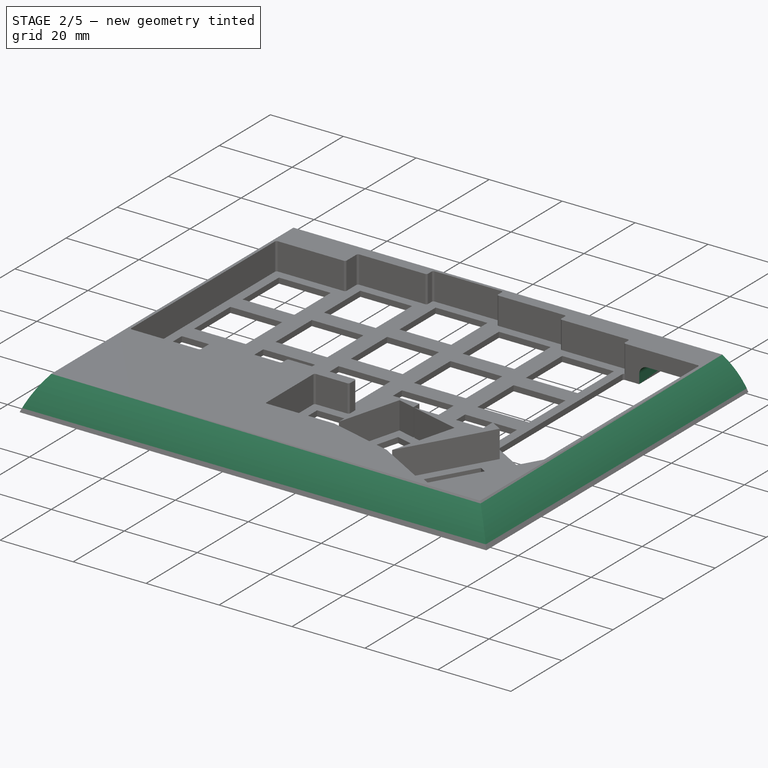
[diagram: stage 2 of 5 — iso view after this stage's code; geometry added in this stage tinted green]
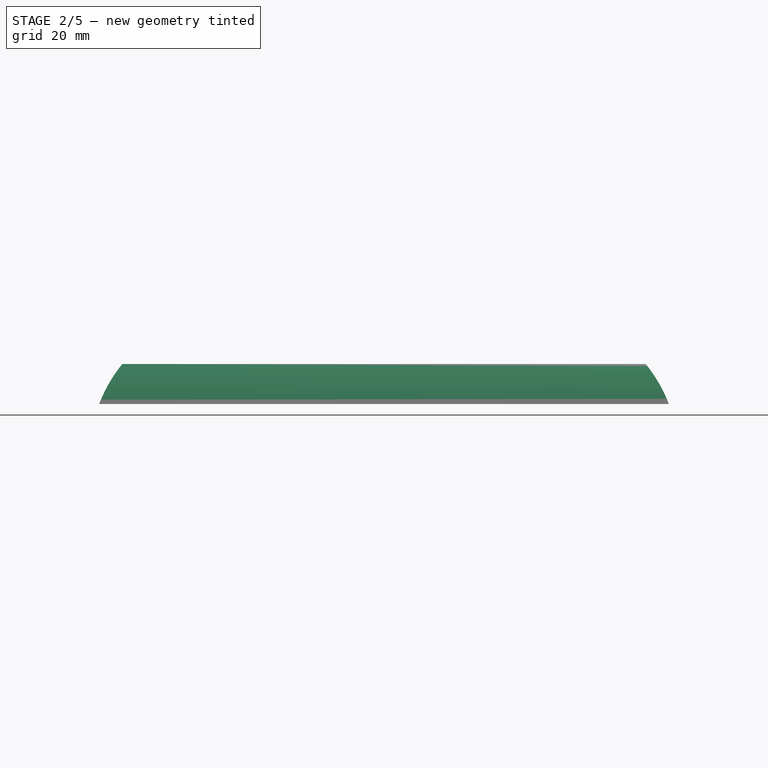
[diagram: stage 2 of 5 — front view after this stage's code; geometry added in this stage tinted green]
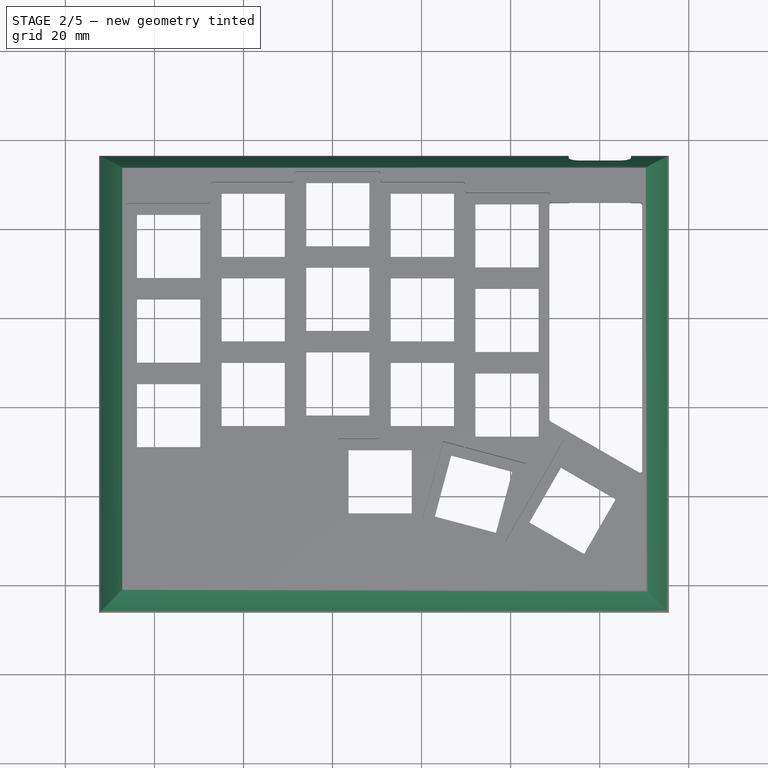
[diagram: stage 2 of 5 — top view after this stage's code; geometry added in this stage tinted green]
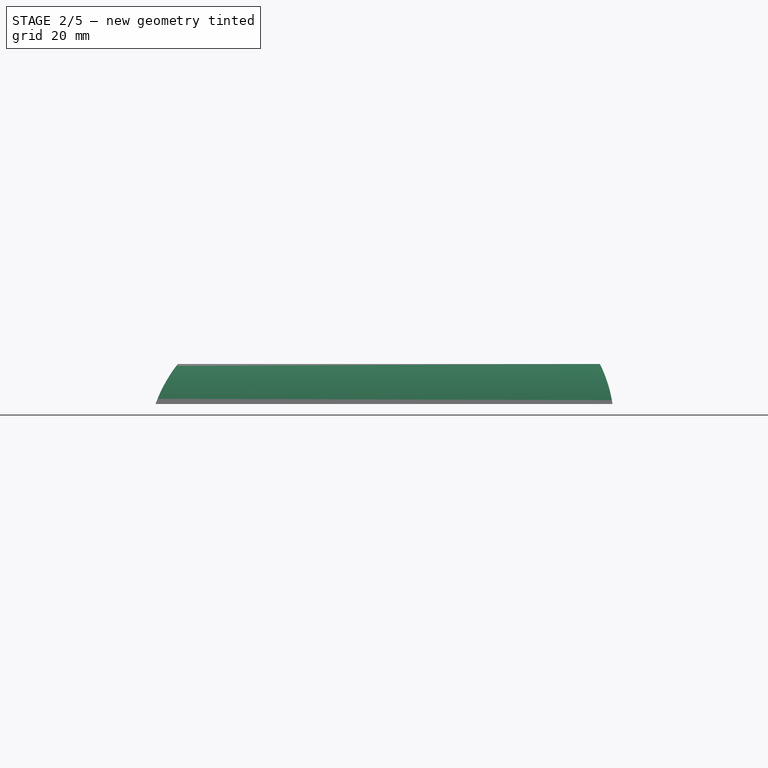
[diagram: stage 2 of 5 — right view after this stage's code; geometry added in this stage tinted green]
FEATURE [Sketcher::SketchObject] Sketch005  label="XZ_cut_sketch"
  AttachmentOffset = pos=(0,0,-15) rot=(0,0,1;0rad)
  ExternalGeometry = -> [Pocket002]
  FullyConstrained = true
  MapMode = 5
  Placement = pos=(0,15,3.3e-15) rot=(1,0,0;1.5708rad)
  Support = -> [XZ_Plane]
  expr: Constraints[4] = Spreadsheet.edge_curve
  expr: Constraints[9] = Spreadsheet.edge_curve
  sketch-geometry (6):
    g0: ArcOfCircle CenterX=198.595 CenterY=-11.9158 CenterZ=0 NormalX=0 NormalY=0 NormalZ=1 AngleXU=0 Radius=33.2223 StartAngle=2.46059 EndAngle=2.77475
    g1: LineSegment StartX=167.584 StartY=1.1742e-12 StartZ=0 EndX=167.584 EndY=9 EndZ=0
    g2: LineSegment StartX=167.584 StartY=9 StartZ=0 EndX=172.784 EndY=9 EndZ=0
    g3: ArcOfCircle CenterX=264.526 CenterY=-11.9158 CenterZ=0 NormalX=0 NormalY=0 NormalZ=1 AngleXU=0 Radius=33.2223 StartAngle=0.36684 EndAngle=0.680999
    g4: LineSegment StartX=290.338 StartY=9 StartZ=0 EndX=295.538 EndY=9 EndZ=0
    g5: LineSegment StartX=295.538 StartY=9 StartZ=0 EndX=295.538 EndY=1.1617e-12 EndZ=0
  constraints (16):
    c: Coincident(g0,g-4)
    c: Coincident(g1,g0)
    c: Coincident(g1,g-4)
    c: Coincident(g2,g1)
    c: Angle(g0) = 0.314159
    c: Coincident(g3,g-3)
    c: Coincident(g4,g-3)
    c: Coincident(g5,g4)
    c: Coincident(g5,g3)
    c: Angle(g3) = 0.314159
    c: Coincident(g2,g0)
    c: Coincident(g3,g4)
    c: DistanceX(g-7,g3) = 0.8
    c: Horizontal(g4)
    c: DistanceX(g0,g-6) = 0.8
    c: Horizontal(g2)
FEATURE [Sketcher::SketchObject] Sketch006  label="YZ_cut_sketch"
  ExternalGeometry = -> [Pocket002]
  FullyConstrained = true
  MapMode = 5
  Placement = pos=(0,0,0) rot=(0.57735,0.57735,0.57735;2.0944rad)
  Support = -> [YZ_Plane]
  expr: Constraints[4] = Spreadsheet.edge_curve
  expr: Constraints[9] = Spreadsheet.edge_curve
  sketch-geometry (6):
    g0: ArcOfCircle CenterX=-75.2032 CenterY=-11.3024 CenterZ=0 NormalX=0 NormalY=0 NormalZ=1 AngleXU=0 Radius=32.916 StartAngle=2.47693 EndAngle=2.79109
    g1: LineSegment StartX=-106.118 StartY=-1.115e-13 StartZ=0 EndX=-106.118 EndY=9 EndZ=0
    g2: LineSegment StartX=-106.118 StartY=9 StartZ=0 EndX=-101.112 EndY=9 EndZ=0
    g3: ArcOfCircle CenterX=-33.3135 CenterY=-4.41584 CenterZ=0 NormalX=0 NormalY=0 NormalZ=1 AngleXU=0 Radius=30.1492 StartAngle=0.146995 EndAngle=0.461155
    g4: LineSegment StartX=-3.48953 StartY=4.384e-12 StartZ=0 EndX=-3.48953 EndY=9 EndZ=0
    g5: LineSegment StartX=-3.48953 StartY=9 StartZ=0 EndX=-6.31379 EndY=9 EndZ=0
  constraints (16):
    c: Coincident(g0,g-5)
    c: Coincident(g1,g0)
    c: Coincident(g1,g-5)
    c: Coincident(g2,g1)
    c: Angle(g0) = 0.314159
    c: Coincident(g3,g-4)
    c: Coincident(g4,g3)
    c: Coincident(g4,g-4)
    c: Coincident(g5,g4)
    c: Angle(g3) = 0.314159
    c: Coincident(g2,g0)
    c: Horizontal(g2)
    c: DistanceX(g0,g-8) = 0.8
    c: Coincident(g3,g5)
    c: Horizontal(g5)
    c: DistanceX(g-7,g3) = 0.8
FEATURE [PartDesign::Pocket] Pocket003  label="XZ Edge cut"
  BaseFeature = -> Pocket002
  Direction = (0,1,2e-16)
  Length = 5
  Length2 = 5
  Profile = -> Sketch005
  ReferenceAxis = -> Sketch005 [N_Axis]
  Reversed = true
  Type = 1
FEATURE [PartDesign::Pocket] Pocket004  label="YZ Edge cut"
  BaseFeature = -> Pocket003
  Direction = (-1,2e-16,-3e-16)
  Length = 5
  Length2 = 5
  Profile = -> Sketch006
  ReferenceAxis = -> Sketch006 [N_Axis]
  Reversed = true
  Type = 1
FEATURE [Sketcher::SketchObject] Sketch007  label="insert_sketch"
  ExternalGeometry = -> [Pocket004]
  FullyConstrained = true
  MapMode = 5
  Support = -> [XY_Plane]
  expr: Constraints[0] = Spreadsheet.insert_diameter
  expr: Constraints[10] = Spreadsheet.insert_offset_y
  expr: Constraints[11] = Spreadsheet.insert_offset_x
  expr: Constraints[1] = Spreadsheet.insert_offset_y
  expr: Constraints[2] = Spreadsheet.insert_offset_x
  expr: Constraints[3] = Spreadsheet.insert_offset_x
  expr: Constraints[7] = Spreadsheet.insert_offset_y
  expr: Constraints[8] = Spreadsheet.insert_offset_x
  expr: Constraints[9] = Spreadsheet.insert_offset_y
  sketch-geometry (4):
    g0: Circle CenterX=173.784 CenterY=-7.81379 CenterZ=0 NormalX=0 NormalY=0 NormalZ=1 AngleXU=0 Radius=1.6
    g1: Circle CenterX=289.338 CenterY=-99.6122 CenterZ=0 NormalX=0 NormalY=0 NormalZ=1 AngleXU=0 Radius=1.6
    g2: Circle CenterX=173.784 CenterY=-99.6122 CenterZ=0 NormalX=0 NormalY=0 NormalZ=1 AngleXU=0 Radius=1.6
    g3: Circle CenterX=289.338 CenterY=-7.81379 CenterZ=0 NormalX=0 NormalY=0 NormalZ=1 AngleXU=0 Radius=1.6
  constraints (12):
    c: Diameter(g0) = 3.2
    c: DistanceY(g0,g-3) = 1.5
    c: DistanceX(g-3,g0) = 1
    c: DistanceX(g1,g-4) = 1
    c: Equal(g0,g1)
    c: Equal(g0,g3)
    c: Equal(g0,g2)
    c: DistanceY(g-5,g2) = 1.5
    c: DistanceX(g-5,g2) = 1
    c: DistanceY(g-4,g1) = 1.5
    c: DistanceY(g3,g-6) = 1.5
    c: DistanceX(g3,g-6) = 1
FEATURE [PartDesign::Pocket] Pocket005  label="Inserts"
  BaseFeature = -> Pocket004
  Direction = (0,0,-1)
  Length = 5
  Length2 = 5
  Profile = -> Sketch007
  ReferenceAxis = -> Sketch007 [N_Axis]
  Reversed = true
  Type = 0
FEATURE [Sketcher::SketchObject] Sketch008  label="usb_sketch"
  AttachmentOffset = pos=(0,0,15) rot=(0,0,1;0rad)
  ExternalGeometry = -> [Pocket005]
  FullyConstrained = true
  MapMode = 5
  Placement = pos=(0,-15,-3.3e-15) rot=(1,0,0;1.5708rad)
  Support = -> [XZ_Plane]
  sketch-geometry (11):
    g0: ArcOfCircle CenterX=275.288 CenterY=2.5 CenterZ=0 NormalX=0 NormalY=0 NormalZ=1 AngleXU=0 Radius=2.25 StartAngle=1.5708 EndAngle=3.14159
    g1: LineSegment StartX=275.288 StartY=4.75 StartZ=0 EndX=284.788 EndY=4.75 EndZ=0
    g2: ArcOfCircle CenterX=284.788 CenterY=2.5 CenterZ=0 NormalX=0 NormalY=0 NormalZ=1 AngleXU=0 Radius=2.25 StartAngle=-1.07e-14 EndAngle=1.5708
    g3: LineSegment StartX=287.038 StartY=2.5 StartZ=0 EndX=287.038 EndY=-0.5 EndZ=0
    g4: ArcOfCircle CenterX=284.788 CenterY=-0.5 CenterZ=0 NormalX=0 NormalY=0 NormalZ=1 AngleXU=0 Radius=2.25 StartAngle=4.71239 EndAngle=6.28319
    g5: LineSegment StartX=284.788 StartY=-2.75 StartZ=0 EndX=275.288 EndY=-2.75 EndZ=0
    g6: ArcOfCircle CenterX=275.288 CenterY=-0.5 CenterZ=0 NormalX=0 NormalY=0 NormalZ=1 AngleXU=0 Radius=2.25 StartAngle=3.14159 EndAngle=4.71239
    g7: LineSegment StartX=273.038 StartY=-0.5 StartZ=0 EndX=273.038 EndY=2.5 EndZ=0
    g8: GeomPoint X=273.038 Y=4.75 Z=0
    g9: GeomPoint X=287.038 Y=-2.75 Z=0
    g10: GeomPoint X=279.038 Y=1 Z=0
  constraints (26):
    c: Tangent(g0,g1) = 1.5708
    c: Tangent(g1,g2) = 1.5708
    c: Tangent(g2,g3) = 1.5708
    c: Tangent(g3,g4) = 1.5708
    c: Tangent(g4,g5) = 1.5708
    c: Tangent(g5,g6) = 1.5708
    c: Tangent(g6,g7) = 1.5708
    c: Tangent(g7,g0) = 1.5708
    c: Horizontal(g1)
    c: Horizontal(g5)
    c: Vertical(g3)
    c: Vertical(g7)
    c: Equal(g0,g2)
    c: Equal(g2,g4)
    c: Equal(g4,g6)
    c: PointOnObject(g8,g1)
    c: PointOnObject(g8,g7)
    c: PointOnObject(g9,g3)
    c: PointOnObject(g9,g5)
    c: DistanceY(g7,g7) = 3
    c: DistanceY(g5,g0) = 7.5
    c: DistanceX(g0,g2) = 14
    c: DistanceY(g10,g-8) = 0.5
    c: DistanceX(g10,g-8) = 10
    c: DistanceY(g10,g0) = 1.5
    c: DistanceX(g0,g10) = 3.75
FEATURE [PartDesign::Pocket] Pocket006  label="USB cutout"
  BaseFeature = -> Pocket005
  Direction = (0,1,2e-16)
  Length = 5
  Length2 = 5
  Profile = -> Sketch008
  ReferenceAxis = -> Sketch008 [N_Axis]
  Type = 1
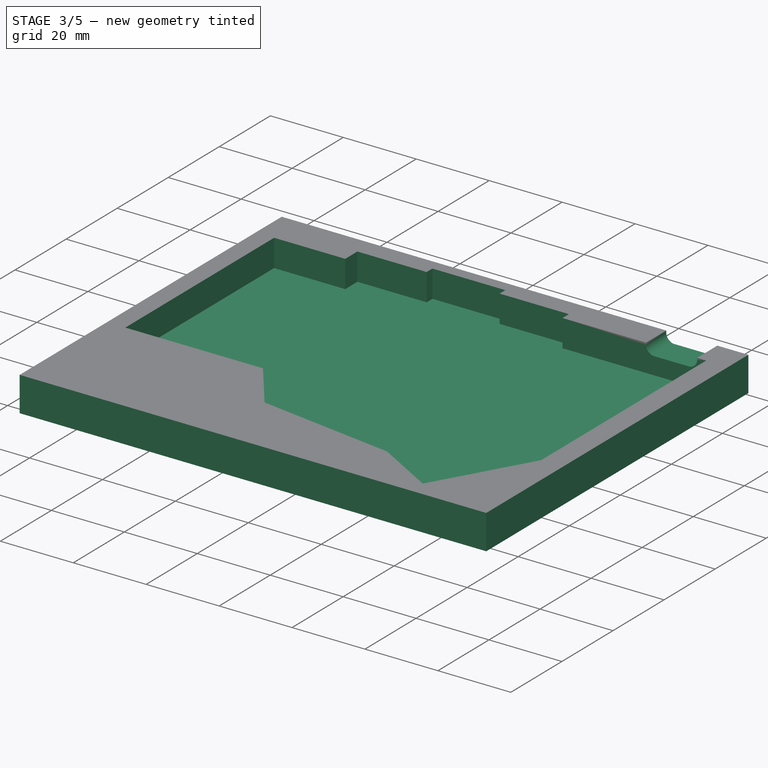
[diagram: stage 3 of 5 — iso view after this stage's code; geometry added in this stage tinted green]
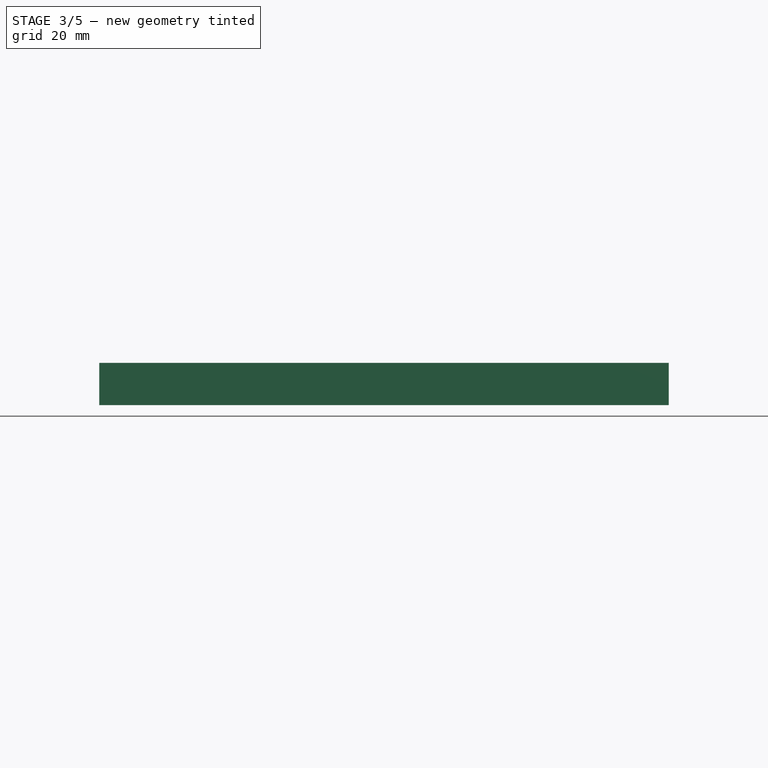
[diagram: stage 3 of 5 — front view after this stage's code; geometry added in this stage tinted green]
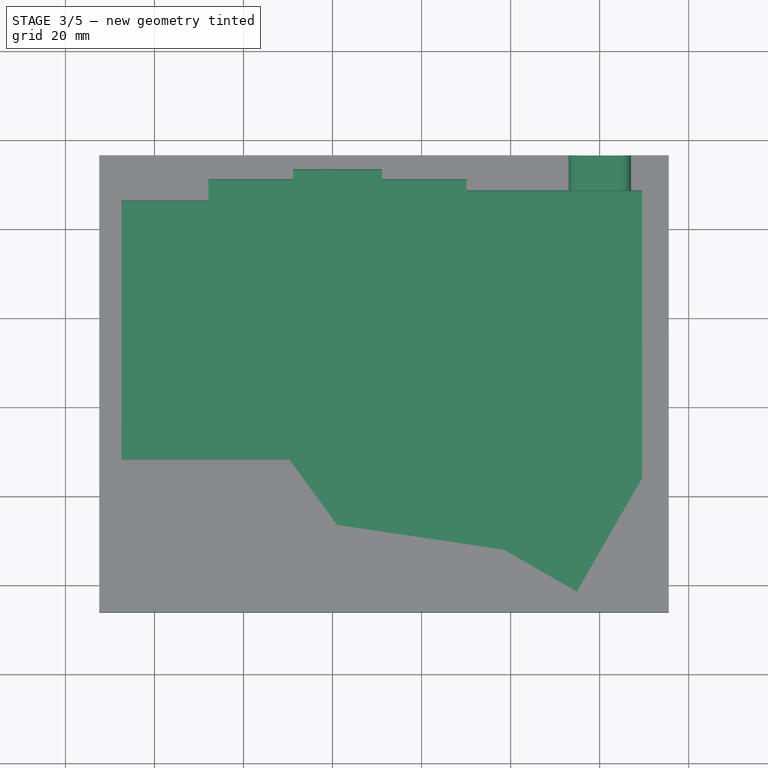
[diagram: stage 3 of 5 — top view after this stage's code; geometry added in this stage tinted green]
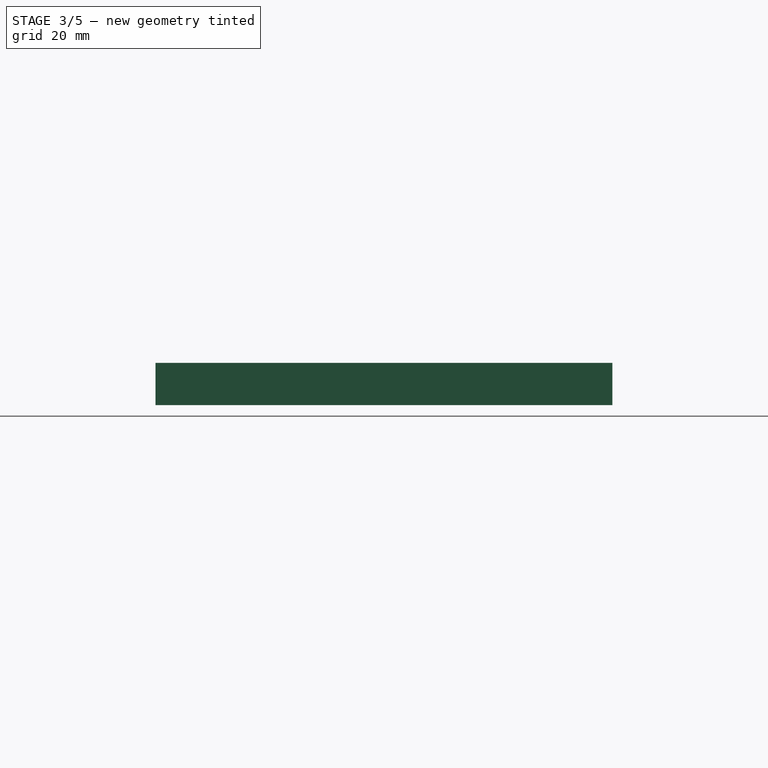
[diagram: stage 3 of 5 — right view after this stage's code; geometry added in this stage tinted green]
FEATURE [PartDesign::Body] Body  label="Top case"
  Group = -> [Sketch,Sketch001,Sketch002,Sketch003,Pad,Pocket,Pocket001,Sketch004,Pocket002,Sketch005,Sketch006,Pocket003,Pocket004,Sketch007,Pocket005,Sketch008,Pocket006]
  Origin = -> Origin
  Tip = -> Pocket006
FEATURE [PartDesign::ShapeBinder] ShapeBinder
  Support = -> [Body]
  TraceSupport = false
FEATURE [Sketcher::SketchObject] Sketch009
  AttachmentOffset = pos=(0,0,-9.5) rot=(0,0,1;0rad)
  ExternalGeometry = -> [ShapeBinder]
  FullyConstrained = true
  MapMode = 5
  Placement = pos=(0,0,-9.5) rot=(0,0,1;0rad)
  Support = -> [XY_Plane001]
  expr: .AttachmentOffset.Base.z = -Spreadsheet.bottom_height
  sketch-geometry (4):
    g0: LineSegment StartX=167.584 StartY=-3.48953 StartZ=0 EndX=295.538 EndY=-3.48953 EndZ=0
    g1: LineSegment StartX=295.538 StartY=-3.48953 StartZ=0 EndX=295.538 EndY=-106.118 EndZ=0
    g2: LineSegment StartX=295.538 StartY=-106.118 StartZ=0 EndX=167.584 EndY=-106.118 EndZ=0
    g3: LineSegment StartX=167.584 StartY=-106.118 StartZ=0 EndX=167.584 EndY=-3.48953 EndZ=0
  constraints (10):
    c: Coincident(g0,g1)
    c: Coincident(g1,g2)
    c: Coincident(g2,g3)
    c: Coincident(g3,g0)
    c: Horizontal(g0)
    c: Horizontal(g2)
    c: Vertical(g1)
    c: Vertical(g3)
    c: Coincident(g0,g-3)
    c: Coincident(g1,g-4)
FEATURE [PartDesign::Pad] Pad001  label="Case"
  Direction = (0,0,1)
  Length = 9.5
  Length2 = 10
  Profile = -> Sketch009
  ReferenceAxis = -> Sketch009 [N_Axis]
  Type = 0
  expr: Length = Spreadsheet.bottom_height
FEATURE [PartDesign::ShapeBinder] ShapeBinder001
  Placement = pos=(0,0,0) rot=(0,0,1;3.14159rad)
  Support = -> [Sketch]
  TraceSupport = false
FEATURE [PartDesign::SubShapeBinder] Binder
  BindCopyOnChange = 0
  BindMode = 0
  ClaimChildren = false
  Context = -> Body001 [Binder.]
  Fuse = false
  MakeFace = true
  OffsetFill = false
  OffsetIntersection = false
  OffsetJoinType = 0
  OffsetOpenResult = false
  PartialLoad = false
  Relative = true
  Support = -> [Body[Sketch.]]
  _Version = 2
FEATURE [Sketcher::SketchObject] Sketch010  label="pcb_sketch"
  ExternalGeometry = -> [Binder,ShapeBinder]
  FullyConstrained = true
  MapMode = 5
  Support = -> [XY_Plane001]
  expr: Constraints[10] = Spreadsheet.pcb_clearance
  expr: Constraints[11] = Spreadsheet.pcb_clearance
  expr: Constraints[12] = Spreadsheet.pcb_clearance
  expr: Constraints[13] = Spreadsheet.pcb_clearance
  expr: Constraints[14] = Spreadsheet.pcb_clearance
  expr: Constraints[33] = Spreadsheet.pcb_clearance
  expr: Constraints[34] = Spreadsheet.pcb_clearance
  expr: Constraints[35] = Spreadsheet.pcb_clearance
  expr: Constraints[36] = Spreadsheet.pcb_clearance
  expr: Constraints[37] = Spreadsheet.pcb_clearance
  expr: Constraints[38] = Spreadsheet.pcb_clearance
  expr: Constraints[39] = Spreadsheet.pcb_clearance
  expr: Constraints[40] = Spreadsheet.pcb_clearance
  expr: Constraints[41] = Spreadsheet.pcb_clearance
  expr: Constraints[43] = Spreadsheet.pcb_clearance
  expr: Constraints[6] = Spreadsheet.pcb_clearance
  expr: Constraints[7] = Spreadsheet.pcb_clearance
  expr: Constraints[8] = Spreadsheet.pcb_clearance
  expr: Constraints[9] = Spreadsheet.pcb_clearance
  sketch-geometry (16):
    g0: LineSegment StartX=172.608 StartY=-13.6485 StartZ=0 EndX=172.608 EndY=-71.9028 EndZ=0
    g1: LineSegment StartX=172.608 StartY=-71.9028 StartZ=0 EndX=210.355 EndY=-71.9028 EndZ=0
    g2: LineSegment StartX=210.355 StartY=-71.9028 StartZ=0 EndX=221.035 EndY=-86.5407 EndZ=0
    g3: LineSegment StartX=221.035 StartY=-86.5407 StartZ=0 EndX=258.532 EndY=-92.1147 EndZ=0
    g4: LineSegment StartX=258.532 StartY=-92.1147 StartZ=0 EndX=274.884 EndY=-101.525 EndZ=0
    g5: LineSegment StartX=274.884 StartY=-101.525 StartZ=0 EndX=289.538 EndY=-76.0196 EndZ=0
    g6: LineSegment StartX=172.608 StartY=-13.6485 StartZ=0 EndX=192.114 EndY=-13.6485 EndZ=0
    g7: LineSegment StartX=192.114 StartY=-13.6485 StartZ=0 EndX=192.114 EndY=-8.89845 EndZ=0
    g8: LineSegment StartX=192.114 StartY=-8.89845 StartZ=0 EndX=211.116 EndY=-8.89845 EndZ=0
    g9: LineSegment StartX=211.116 StartY=-8.89845 StartZ=0 EndX=211.116 EndY=-6.64811 EndZ=0
    g10: LineSegment StartX=211.116 StartY=-6.64811 StartZ=0 EndX=231.117 EndY=-6.64811 EndZ=0
    g11: LineSegment StartX=231.117 StartY=-6.64811 StartZ=0 EndX=231.117 EndY=-8.89845 EndZ=0
    g12: LineSegment StartX=231.117 StartY=-8.89845 StartZ=0 EndX=250.119 EndY=-8.89845 EndZ=0
    g13: LineSegment StartX=250.119 StartY=-8.89845 StartZ=0 EndX=250.119 EndY=-11.3982 EndZ=0
    g14: LineSegment StartX=250.119 StartY=-11.3982 StartZ=0 EndX=289.538 EndY=-11.3982 EndZ=0
    g15: LineSegment StartX=289.538 StartY=-11.3982 StartZ=0 EndX=289.538 EndY=-76.0196 EndZ=0
  constraints (48):
    c: Vertical(g0)
    c: Coincident(g1,g0)
    c: Horizontal(g1)
    c: Coincident(g2,g1)
    c: Coincident(g3,g2)
    c: Coincident(g4,g3)
    c: DistanceX(g0,g-4) = 1
    c: DistanceY(g0,g-3) = 1
    c: Distance(g-6,g2) = 1
    c: Distance(g-6,g2) = 1
    c: Distance(g-7,g3) = 1
    c: Distance(g-7,g3) = 1
    c: Distance(g-8,g4) = 1
    c: Distance(g-8,g4) = 1
    c: Distance(g-9,g5) = 1
    c: Coincident(g6,g0)
    c: Horizontal(g6)
    c: Coincident(g7,g6)
    c: Vertical(g7)
    c: Coincident(g8,g7)
    c: Horizontal(g8)
    c: Coincident(g9,g8)
    c: Vertical(g9)
    c: Coincident(g10,g9)
    c: Horizontal(g10)
    c: Coincident(g11,g10)
    c: Vertical(g11)
    c: Coincident(g12,g11)
    c: Horizontal(g12)
    c: Coincident(g13,g12)
    c: Vertical(g13)
    c: Coincident(g14,g13)
    c: Horizontal(g14)
    c: DistanceY(g-10,g0) = 1
    c: DistanceX(g6,g-11) = 1
    c: DistanceY(g-12,g7) = 1
    c: DistanceX(g9,g-15) = 1
    c: DistanceY(g-5,g9) = 1
    c: DistanceX(g-16,g10) = 1
    c: DistanceY(g-13,g11) = 1
    c: DistanceX(g-17,g12) = 1
    c: DistanceY(g-14,g13) = 1
    c: Coincident(g4,g5)
    c: Distance(g-9,g5) = 1
    c: Vertical(g15)
    c: Coincident(g15,g5)
    c: DistanceX(g15,g-19) = 0
    c: Coincident(g15,g14)
FEATURE [PartDesign::Pocket] Pocket007  label="PCB cutout"
  BaseFeature = -> Pad001
  Direction = (0,0,-1)
  Length = 7.5
  Length2 = 5
  Profile = -> Sketch010
  ReferenceAxis = -> Sketch010 [N_Axis]
  Type = 0
  expr: Length = <<Spreadsheet>>.pcb_pad
FEATURE [PartDesign::SubShapeBinder] Binder001
  BindCopyOnChange = 0
  BindMode = 0
  ClaimChildren = false
  Context = -> Body001 [Binder001.]
  Fuse = false
  MakeFace = true
  OffsetFill = false
  OffsetIntersection = false
  OffsetJoinType = 0
  OffsetOpenResult = false
  PartialLoad = false
  Relative = true
  Support = -> [Body[Pocket006.Sketch008.]]
  _Version = 2
FEATURE [Sketcher::SketchObject] Sketch011
  ExternalGeometry = -> [Binder001]
  FullyConstrained = true
  MapMode = 5
  Placement = pos=(0,-15,-3.2e-15) rot=(0,0.707107,0.707107;3.14159rad)
  Support = -> [Binder001]
  sketch-geometry (8):
    g0: ArcOfCircle CenterX=-284.788 CenterY=2.5 CenterZ=0 NormalX=0 NormalY=0 NormalZ=1 AngleXU=0 Radius=2.25 StartAngle=1.5708 EndAngle=3.14159
    g1: LineSegment StartX=-284.788 StartY=4.75 StartZ=0 EndX=-275.288 EndY=4.75 EndZ=0
    g2: ArcOfCircle CenterX=-275.288 CenterY=2.5 CenterZ=0 NormalX=0 NormalY=0 NormalZ=1 AngleXU=0 Radius=2.25 StartAngle=1.42903e-07 EndAngle=1.57079
    g3: LineSegment StartX=-273.038 StartY=2.5 StartZ=0 EndX=-273.038 EndY=-0.5 EndZ=0
    g4: ArcOfCircle CenterX=-275.288 CenterY=-0.5 CenterZ=0 NormalX=0 NormalY=0 NormalZ=1 AngleXU=0 Radius=2.25 StartAngle=4.71239 EndAngle=6.28319
    g5: LineSegment StartX=-275.288 StartY=-2.75 StartZ=0 EndX=-284.788 EndY=-2.75 EndZ=0
    g6: ArcOfCircle CenterX=-284.788 CenterY=-0.5 CenterZ=0 NormalX=0 NormalY=0 NormalZ=1 AngleXU=0 Radius=2.25 StartAngle=3.14159 EndAngle=4.71239
    g7: LineSegment StartX=-287.038 StartY=-0.5 StartZ=0 EndX=-287.038 EndY=2.5 EndZ=0
  constraints (21):
    c: Coincident(g6,g7)
    c: Coincident(g0,g7)
    c: Coincident(g5,g6)
    c: Coincident(g0,g1)
    c: Coincident(g4,g5)
    c: Coincident(g1,g2)
    c: Coincident(g3,g4)
    c: Coincident(g2,g3)
    c: Coincident(g-3,g0)
    c: Coincident(g4,g-7)
    c: Coincident(g2,g-5)
    c: Equal(g-5,g2)
    c: Coincident(g-8,g6)
    c: Horizontal(g1)
    c: Vertical(g3)
    c: Coincident(g3,g-7)
    c: Coincident(g-9,g0)
    c: Coincident(g6,g-9)
    c: DistanceX(g4,g4) = 0
    c: DistanceX(g6,g5) = 0
    c: DistanceX(g0,g0) = 0
FEATURE [PartDesign::Pocket] Pocket008  label="USB cutout bottom"
  BaseFeature = -> Pocket007
  Direction = (0,-1,-2e-16)
  Length = 5
  Length2 = 5
  Profile = -> Sketch011
  ReferenceAxis = -> Sketch011 [N_Axis]
  Reversed = true
  Type = 1
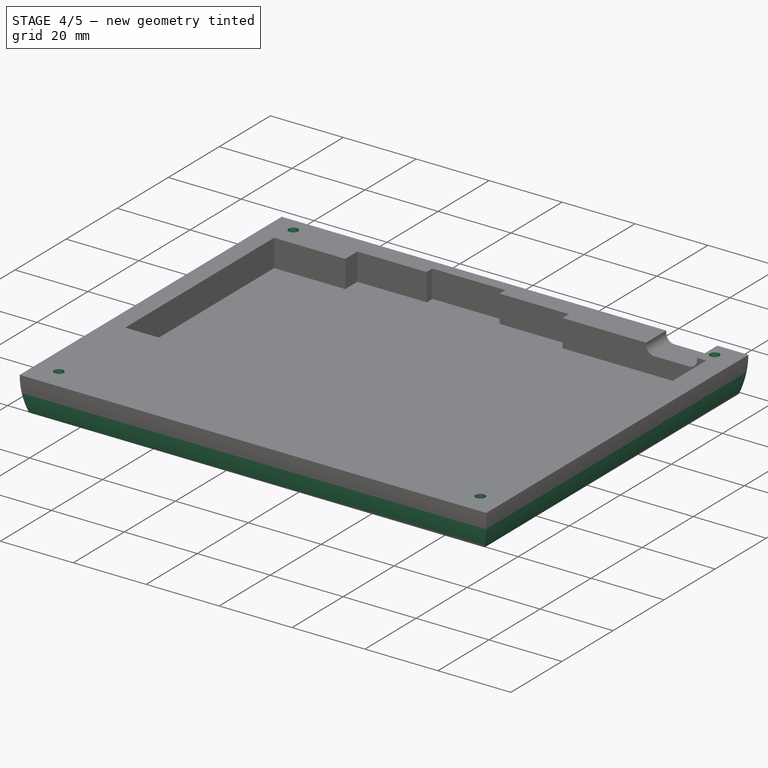
[diagram: stage 4 of 5 — iso view after this stage's code; geometry added in this stage tinted green]
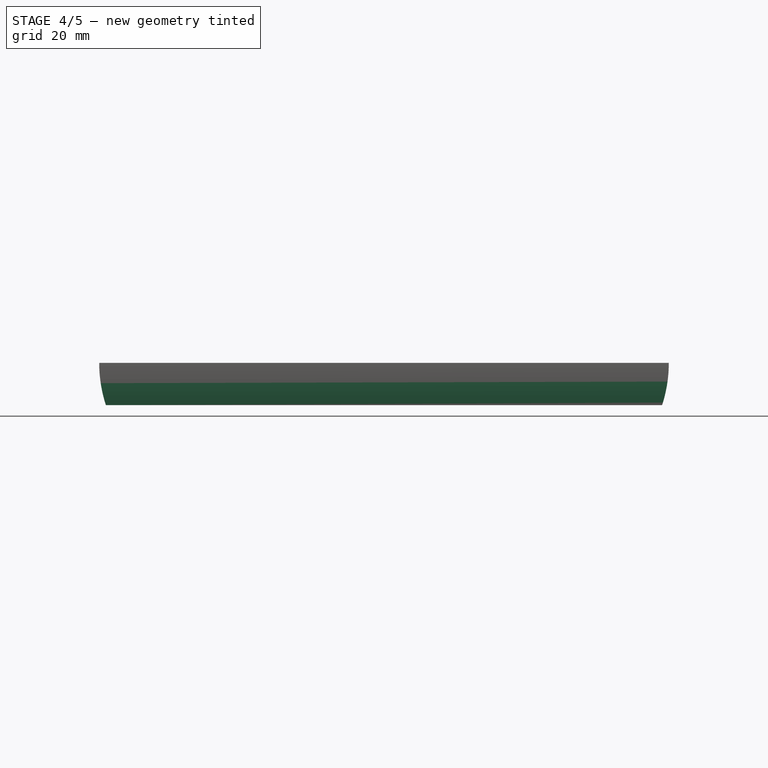
[diagram: stage 4 of 5 — front view after this stage's code; geometry added in this stage tinted green]
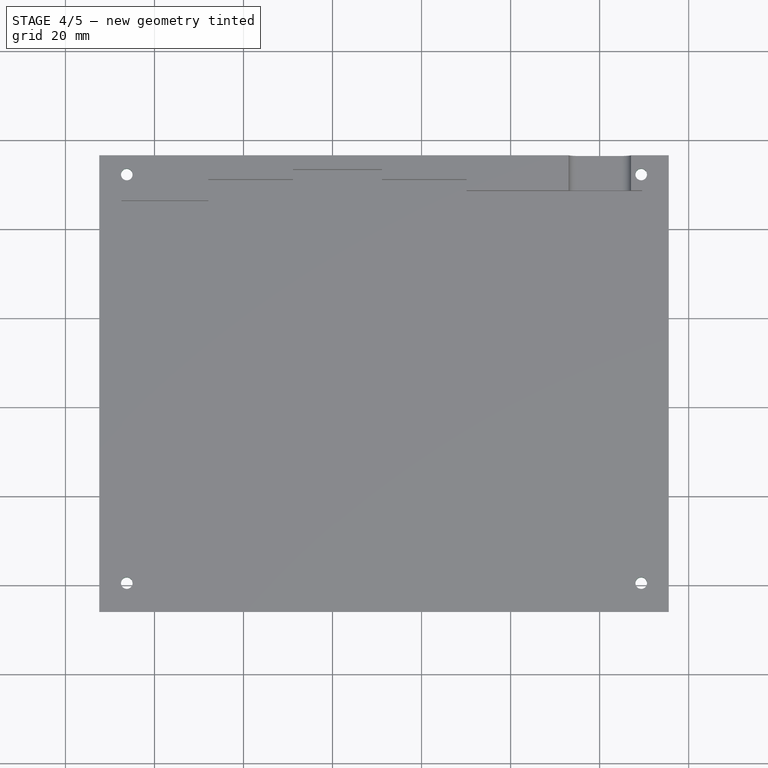
[diagram: stage 4 of 5 — top view after this stage's code; geometry added in this stage tinted green]
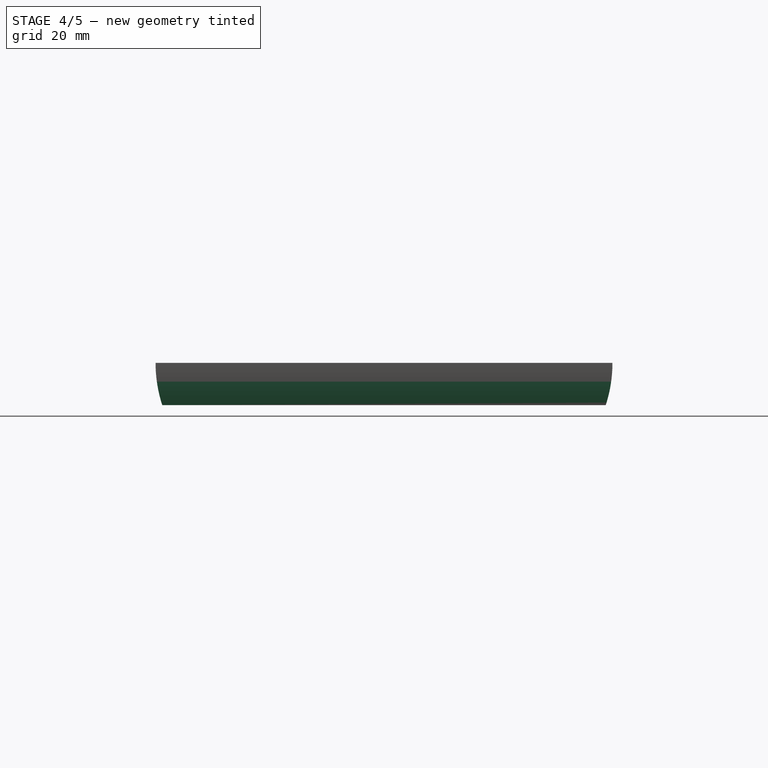
[diagram: stage 4 of 5 — right view after this stage's code; geometry added in this stage tinted green]
FEATURE [Sketcher::SketchObject] Sketch012
  ExternalGeometry = -> [Pocket008]
  FullyConstrained = true
  MapMode = 5
  Placement = pos=(0,0,0) rot=(1,0,0;1.5708rad)
  Support = -> [XZ_Plane001]
  expr: Constraints[4] = Spreadsheet.edge_curve
  sketch-geometry (6):
    g0: ArcOfCircle CenterX=264.795 CenterY=2.36e-14 CenterZ=0 NormalX=0 NormalY=0 NormalZ=1 AngleXU=0 Radius=30.7426 StartAngle=5.96903 EndAngle=6.28319
    g1: ArcOfCircle CenterX=198.326 CenterY=8e-16 CenterZ=0 NormalX=0 NormalY=0 NormalZ=1 AngleXU=0 Radius=30.7426 StartAngle=3.14159 EndAngle=3.45575
    g2: LineSegment StartX=167.584 StartY=4.6e-15 StartZ=0 EndX=167.584 EndY=-9.5 EndZ=0
    g3: LineSegment StartX=167.584 StartY=-9.5 StartZ=0 EndX=169.088 EndY=-9.5 EndZ=0
    g4: LineSegment StartX=295.538 StartY=1.61e-14 StartZ=0 EndX=295.538 EndY=-9.5 EndZ=0
    g5: LineSegment StartX=295.538 StartY=-9.5 StartZ=0 EndX=294.033 EndY=-9.5 EndZ=0
  constraints (16):
    c: PointOnObject(g0,g-3)
    c: PointOnObject(g1,g-4)
    c: Coincident(g1,g-4)
    c: PointOnObject(g1,g-3)
    c: Angle(g1) = 0.314159
    c: Equal(g0,g1)
    c: Coincident(g2,g1)
    c: Coincident(g2,g-3)
    c: Coincident(g3,g2)
    c: Coincident(g3,g1)
    c: Coincident(g4,g-3)
    c: Coincident(g5,g4)
    c: Coincident(g5,g0)
    c: Coincident(g4,g0)
    c: Coincident(g4,g-5)
    c: PointOnObject(g0,g-5)
FEATURE [PartDesign::Pocket] Pocket009  label="XZ bottom curve"
  BaseFeature = -> Pocket008
  Direction = (0,1,2e-16)
  Length = 5
  Length2 = 5
  Profile = -> Sketch012
  ReferenceAxis = -> Sketch012 [N_Axis]
  Reversed = true
  Type = 1
FEATURE [Sketcher::SketchObject] Sketch013
  ExternalGeometry = -> [Pocket009]
  FullyConstrained = true
  MapMode = 5
  Placement = pos=(0,0,0) rot=(0.57735,0.57735,0.57735;2.0944rad)
  Support = -> [YZ_Plane001]
  expr: Constraints[6] = Spreadsheet.edge_curve
  expr: Constraints[7] = Spreadsheet.edge_curve
  sketch-geometry (6):
    g0: ArcOfCircle CenterX=-75.3752 CenterY=-1.029e-13 CenterZ=0 NormalX=0 NormalY=0 NormalZ=1 AngleXU=0 Radius=30.7426 StartAngle=3.14159 EndAngle=3.45575
    g1: ArcOfCircle CenterX=-34.2322 CenterY=-9.15e-14 CenterZ=0 NormalX=0 NormalY=0 NormalZ=1 AngleXU=0 Radius=30.7426 StartAngle=5.96903 EndAngle=6.28319
    g2: LineSegment StartX=-106.118 StartY=-1.128e-13 StartZ=0 EndX=-106.118 EndY=-9.5 EndZ=0
    g3: LineSegment StartX=-106.118 StartY=-9.5 StartZ=0 EndX=-104.613 EndY=-9.5 EndZ=0
    g4: LineSegment StartX=-3.48953 StartY=-7.17e-14 StartZ=0 EndX=-3.48953 EndY=-9.5 EndZ=0
    g5: LineSegment StartX=-3.48953 StartY=-9.5 StartZ=0 EndX=-4.99418 EndY=-9.5 EndZ=0
  constraints (18):
    c: PointOnObject(g0,g-3)
    c: Coincident(g0,g-3)
    c: PointOnObject(g0,g-4)
    c: PointOnObject(g1,g-3)
    c: Coincident(g1,g-3)
    c: PointOnObject(g1,g-4)
    c: Angle(g0) = 0.314159
    c: Angle(g1) = 0.314159
    c: Coincident(g2,g0)
    c: Vertical(g2)
    c: Coincident(g3,g2)
    c: Coincident(g3,g0)
    c: Coincident(g4,g1)
    c: Coincident(g5,g4)
    c: Coincident(g5,g1)
    c: Vertical(g4)
    c: Horizontal(g5)
    c: Horizontal(g3)
FEATURE [PartDesign::Pocket] Pocket010  label="YZ bottom curve"
  BaseFeature = -> Pocket009
  Direction = (-1,2e-16,-3e-16)
  Length = 5
  Length2 = 5
  Profile = -> Sketch013
  ReferenceAxis = -> Sketch013 [N_Axis]
  Reversed = true
  Type = 1
FEATURE [Sketcher::SketchObject] Sketch014
  ExternalGeometry = -> [ShapeBinder]
  FullyConstrained = true
  MapMode = 5
  Support = -> [XY_Plane001]
  sketch-geometry (4):
    g0: Circle CenterX=173.784 CenterY=-7.81379 CenterZ=0 NormalX=0 NormalY=0 NormalZ=1 AngleXU=0 Radius=1.3
    g1: Circle CenterX=173.784 CenterY=-99.6122 CenterZ=0 NormalX=0 NormalY=0 NormalZ=1 AngleXU=0 Radius=1.3
    g2: Circle CenterX=289.338 CenterY=-99.6122 CenterZ=0 NormalX=0 NormalY=0 NormalZ=1 AngleXU=0 Radius=1.3
    g3: Circle CenterX=289.338 CenterY=-7.81379 CenterZ=0 NormalX=0 NormalY=0 NormalZ=1 AngleXU=0 Radius=1.3
  constraints (8):
    c: Diameter(g0) = 2.6
    c: Equal(g0,g1)
    c: Equal(g1,g2)
    c: Equal(g0,g3)
    c: Coincident(g1,g-3)
    c: Coincident(g-5,g3)
    c: Coincident(g2,g-4)
    c: Coincident(g0,g-11)
FEATURE [PartDesign::Pocket] Pocket011  label="Screwholes"
  BaseFeature = -> Pocket010
  Direction = (0,0,-1)
  Length = 5
  Length2 = 5
  Profile = -> Sketch014
  ReferenceAxis = -> Sketch014 [N_Axis]
  Type = 1
FEATURE [Sketcher::SketchObject] Sketch015
  AttachmentOffset = pos=(0,0,-9.5) rot=(0,0,1;0rad)
  ExternalGeometry = -> [Pocket011]
  FullyConstrained = true
  MapMode = 5
  Placement = pos=(0,0,-9.5) rot=(0,0,1;0rad)
  Support = -> [XY_Plane001]
  expr: .AttachmentOffset.Base.z = -Spreadsheet.bottom_height
  sketch-geometry (4):
    g0: Circle CenterX=173.784 CenterY=-7.81379 CenterZ=0 NormalX=0 NormalY=0 NormalZ=1 AngleXU=0 Radius=2.2
    g1: Circle CenterX=289.338 CenterY=-7.81379 CenterZ=0 NormalX=0 NormalY=0 NormalZ=1 AngleXU=0 Radius=2.2
    g2: Circle CenterX=173.784 CenterY=-99.6122 CenterZ=0 NormalX=0 NormalY=0 NormalZ=1 AngleXU=0 Radius=2.2
    g3: Circle CenterX=289.338 CenterY=-99.6122 CenterZ=0 NormalX=0 NormalY=0 NormalZ=1 AngleXU=0 Radius=2.2
  constraints (8):
    c: Diameter(g0) = 4.4
    c: Equal(g0,g1)
    c: Equal(g1,g2)
    c: Equal(g2,g3)
    c: Coincident(g-3,g0)
    c: Coincident(g-4,g1)
    c: Coincident(g3,g-5)
    c: Coincident(g2,g-6)
FEATURE [PartDesign::Pocket] Pocket012  label="Screw cutouts"
  BaseFeature = -> Pocket011
  Direction = (0,0,-1)
  Length = 5.5
  Length2 = 5
  Profile = -> Sketch015
  ReferenceAxis = -> Sketch015 [N_Axis]
  Reversed = true
  Type = 0
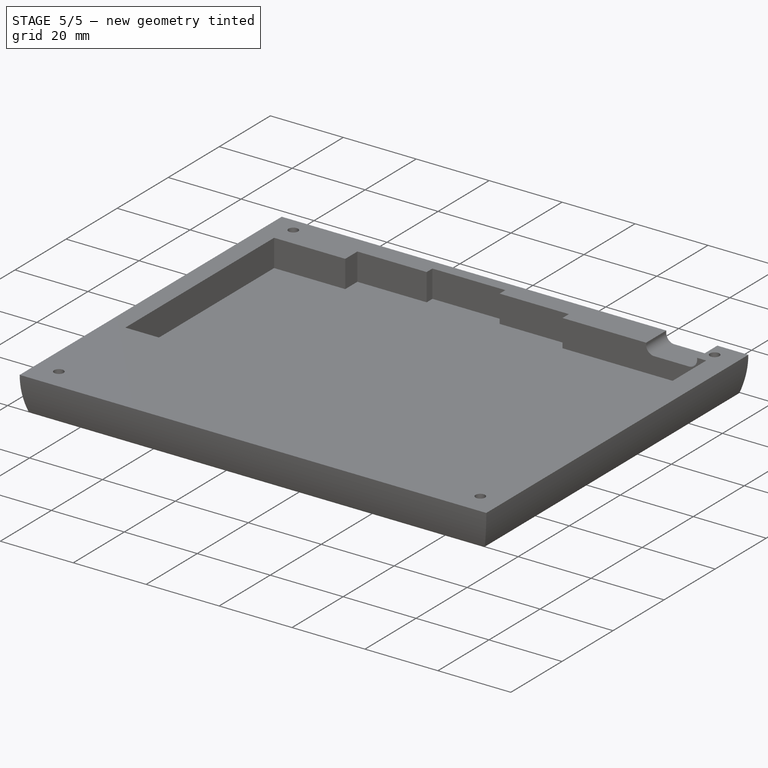
[diagram: stage 5 of 5 — iso view after this stage's code; geometry added in this stage tinted green]
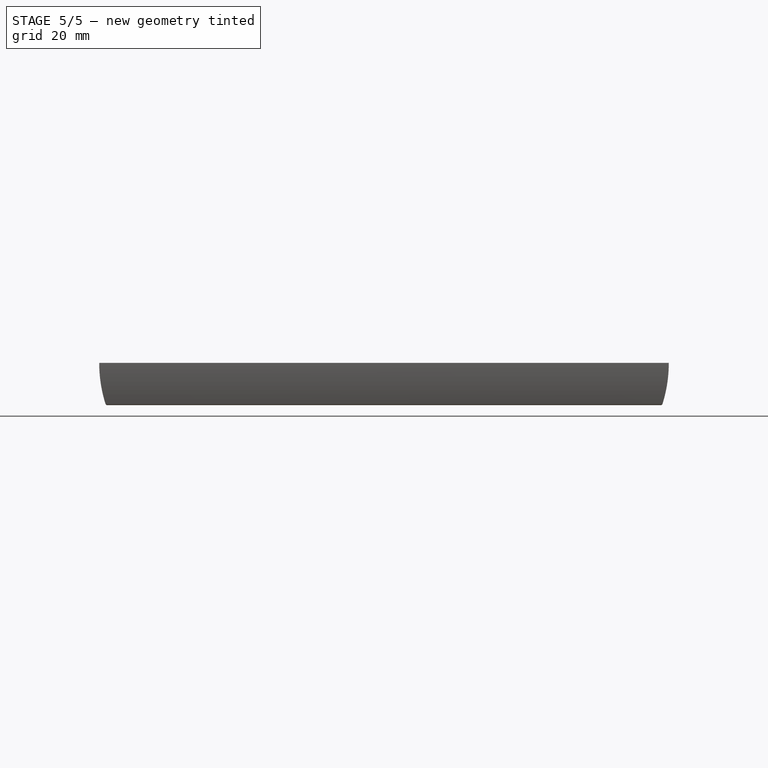
[diagram: stage 5 of 5 — front view after this stage's code; geometry added in this stage tinted green]
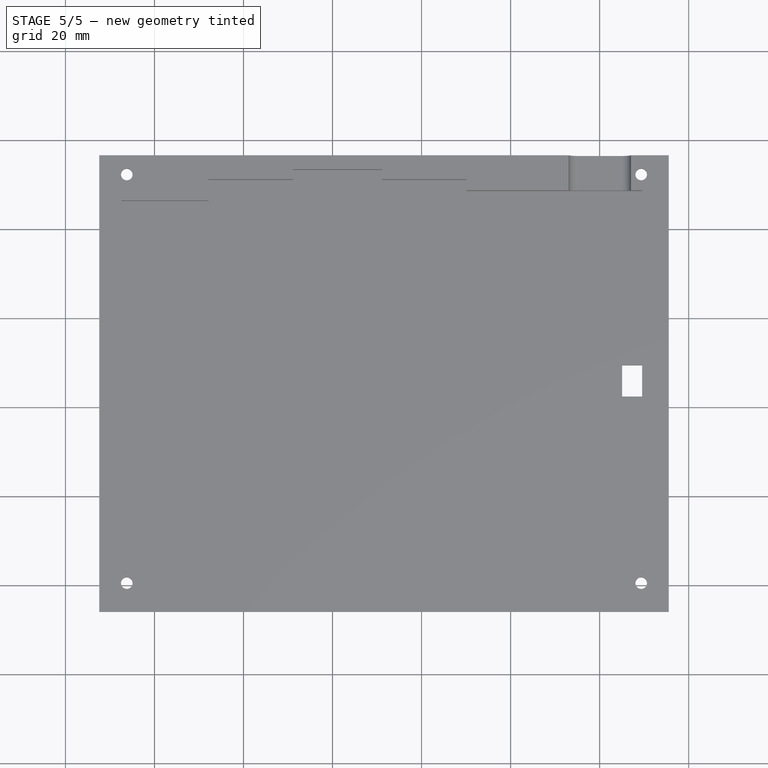
[diagram: stage 5 of 5 — top view after this stage's code; geometry added in this stage tinted green]
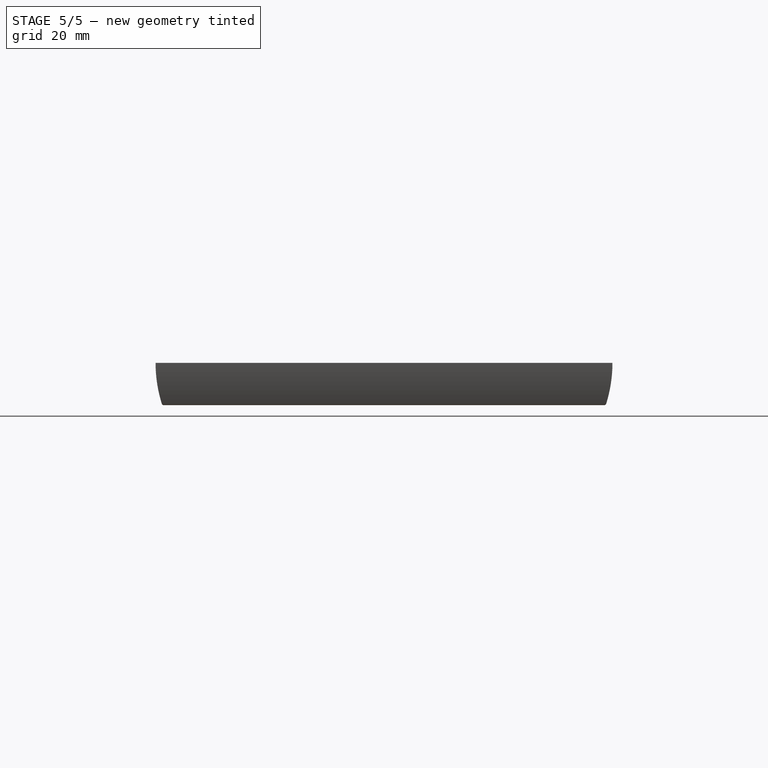
[diagram: stage 5 of 5 — right view after this stage's code; geometry added in this stage tinted green]
FEATURE [Sketcher::SketchObject] Sketch016
  ExternalGeometry = -> [ShapeBinder]
  FullyConstrained = true
  MapMode = 5
  Support = -> [XY_Plane001]
  sketch-geometry (4):
    g0: LineSegment StartX=285.038 StartY=-50.5657 StartZ=0 EndX=289.538 EndY=-50.5657 EndZ=0
    g1: LineSegment StartX=289.538 StartY=-50.5657 StartZ=0 EndX=289.538 EndY=-57.5657 EndZ=0
    g2: LineSegment StartX=289.538 StartY=-57.5657 StartZ=0 EndX=285.038 EndY=-57.5657 EndZ=0
    g3: LineSegment StartX=285.038 StartY=-57.5657 StartZ=0 EndX=285.038 EndY=-50.5657 EndZ=0
  constraints (12):
    c: DistanceX(g0,g0) = 4.5
    c: DistanceY(g3,g3) = 7
    c: Coincident(g1,g0)
    c: PointOnObject(g0,g-3)
    c: Horizontal(g0)
    c: Coincident(g3,g0)
    c: Coincident(g3,g2)
    c: Horizontal(g2)
    c: Coincident(g1,g2)
    c: Vertical(g3)
    c: Vertical(g1)
    c: DistanceY(g0,g-4) = 3
FEATURE [PartDesign::Pocket] Pocket013  label="Reset cutout"
  BaseFeature = -> Pocket012
  Direction = (0,0,-1)
  Length = 5
  Length2 = 5
  Profile = -> Sketch016
  ReferenceAxis = -> Sketch016 [N_Axis]
  Type = 1
FEATURE [Sketcher::SketchObject] Sketch017
  AttachmentOffset = pos=(0,0,-9.5) rot=(0,0,1;0rad)
  ExternalGeometry = -> [Pocket013]
  FullyConstrained = true
  MapMode = 5
  Placement = pos=(0,0,-9.5) rot=(0,0,1;0rad)
  Support = -> [XY_Plane001]
  expr: .AttachmentOffset.Base.z = -Spreadsheet.bottom_height
  sketch-geometry (4):
    g0: Circle CenterX=180.784 CenterY=-14.8138 CenterZ=0 NormalX=0 NormalY=0 NormalZ=1 AngleXU=0 Radius=5
    g1: Circle CenterX=282.338 CenterY=-14.8138 CenterZ=0 NormalX=0 NormalY=0 NormalZ=1 AngleXU=0 Radius=5
    g2: Circle CenterX=282.338 CenterY=-92.6122 CenterZ=0 NormalX=0 NormalY=0 NormalZ=1 AngleXU=0 Radius=5
    g3: Circle CenterX=180.784 CenterY=-92.6122 CenterZ=0 NormalX=0 NormalY=0 NormalZ=1 AngleXU=0 Radius=5
  constraints (12):
    c: Diameter(g0) = 10
    c: DistanceX(g-3,g0) = 7
    c: DistanceY(g0,g-3) = 7
    c: Equal(g0,g1)
    c: Equal(g1,g2)
    c: Equal(g2,g3)
    c: DistanceY(g1,g-4) = 7
    c: DistanceX(g1,g-4) = 7
    c: DistanceY(g-5,g2) = 7
    c: DistanceX(g2,g-5) = 7
    c: DistanceY(g-6,g3) = 7
    c: DistanceX(g-6,g3) = 7
FEATURE [PartDesign::Pocket] Pocket014  label="Feet"
  BaseFeature = -> Pocket013
  Direction = (0,0,-1)
  Length = 0.3
  Length2 = 5
  Profile = -> Sketch017
  ReferenceAxis = -> Sketch017 [N_Axis]
  Reversed = true
  Type = 0
FEATURE [PartDesign::Chamfer] Chamfer  label="Screw chamfer"
  Angle = 45
  Base = -> Pocket014 [Edge88,Edge90,Edge94,Edge92]
  BaseFeature = -> Pocket014
  ChamferType = 0
  FlipDirection = false
  Size = 0.87
  Size2 = 1
  SupportTransform = false
  UseAllEdges = false
FEATURE [PartDesign::Chamfer] Chamfer001  label="Bottom chamfer"
  Angle = 45
  Base = -> Chamfer [Face36]
  BaseFeature = -> Chamfer
  ChamferType = 0
  FlipDirection = false
  Size = 0.2
  Size2 = 1
  SupportTransform = false
  UseAllEdges = false
FEATURE [PartDesign::Body] Body001  label="Bottom case"
  Group = -> [ShapeBinder,Sketch009,Pad001,ShapeBinder001,Sketch010,Binder,Pocket007,Binder001,Sketch011,Pocket008,Sketch012,Pocket009,Sketch013,Pocket010,Sketch014,Pocket011,Sketch015,Pocket012,Sketch016,Pocket013,Sketch017,Pocket014,Chamfer,Chamfer001]
  Origin = -> Origin001
  Tip = -> Chamfer001
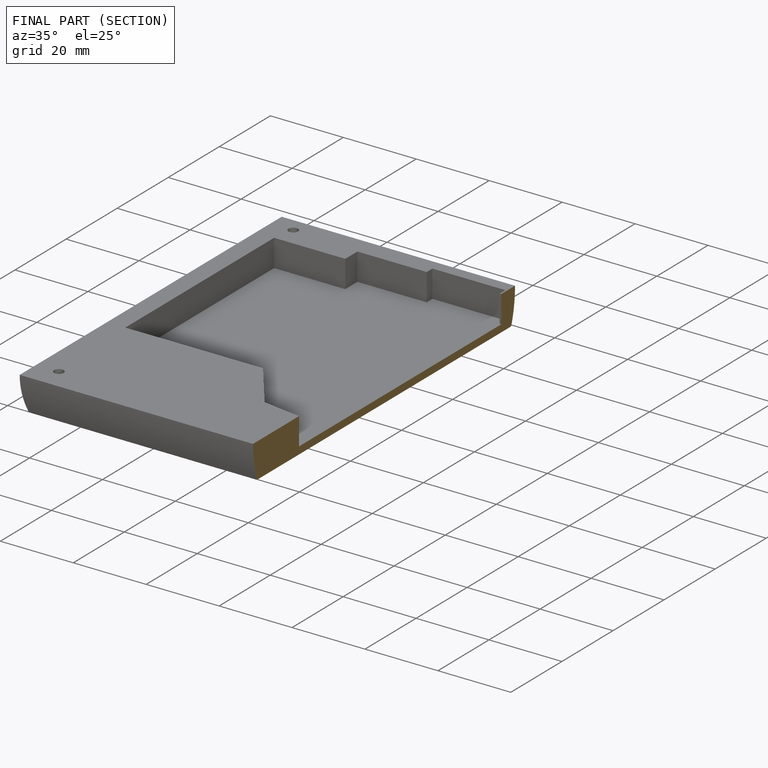
[diagram: finished part — half-section view (interior)]
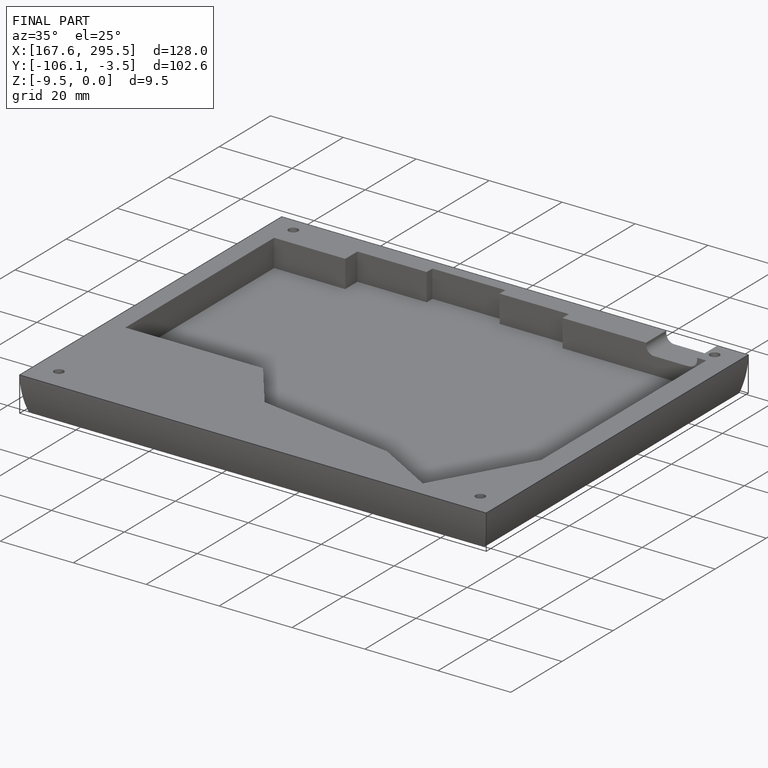
[diagram: finished part — iso view with bounding-box wireframe]
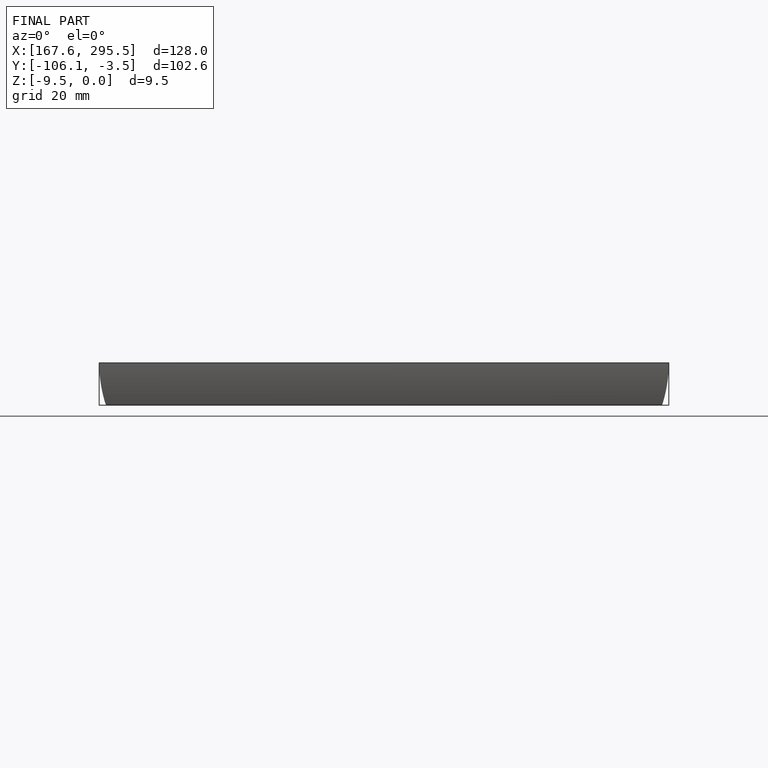
[diagram: finished part — front view with bounding-box wireframe]
